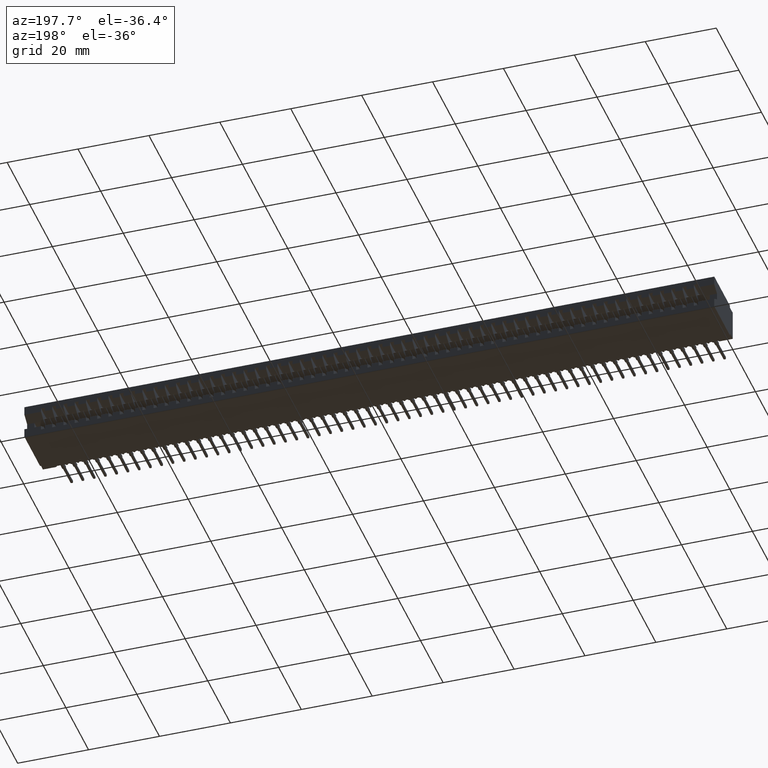
[diagram: clean part render]
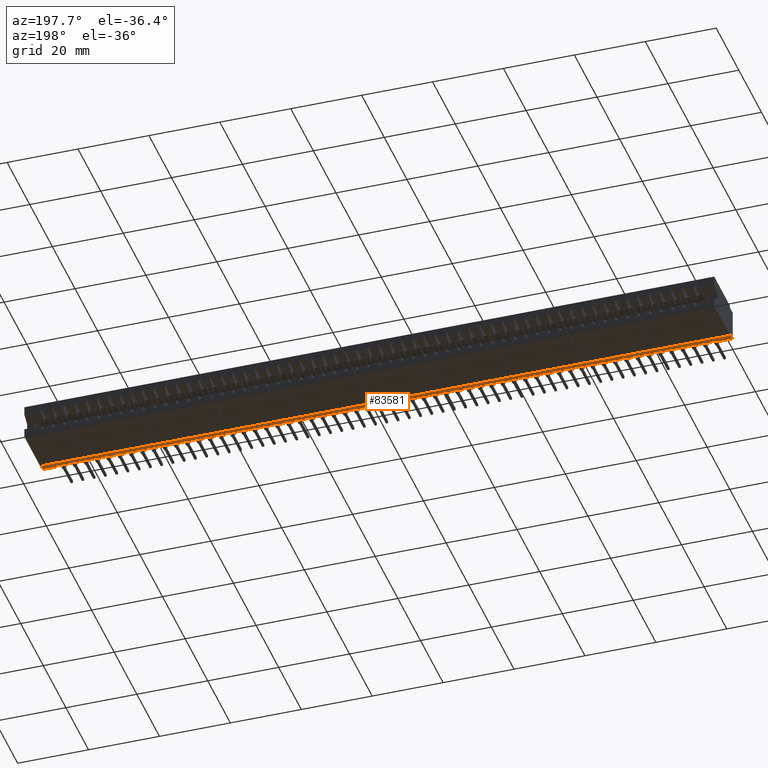
[diagram: same view with one face highlighted and labeled with its STEP entity id]
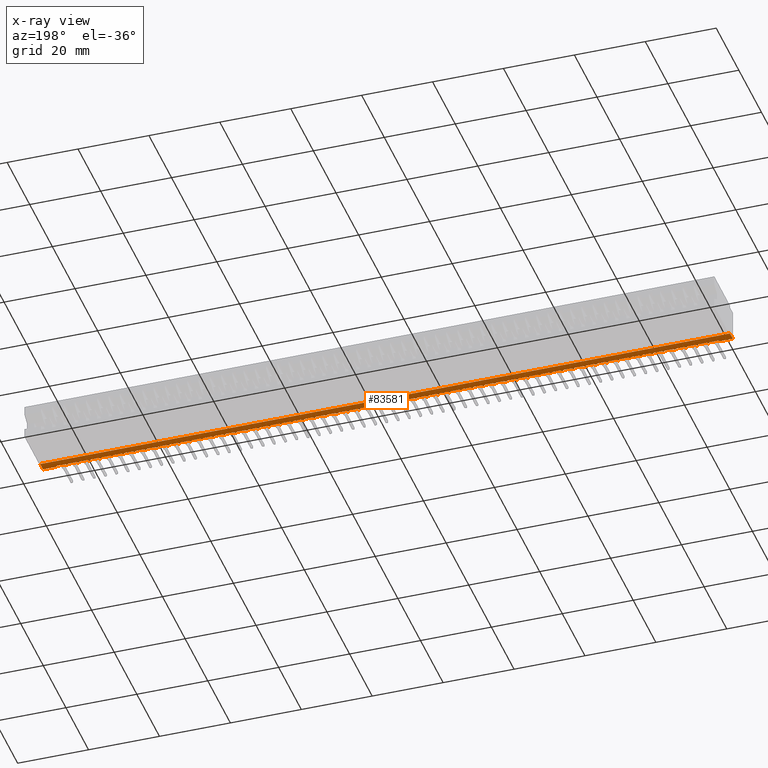
[diagram: x-ray of the same camera — body ghosted, the highlighted face saturated]
A machine part, auxiliary view. The second image highlights one B-rep face of the part: STEP entity #83581.
The next image is the same camera in x-ray: the body ghosted, the highlighted face saturated — about 0% of this face is hidden behind the body in this view.
In plain terms, the highlighted planar face has unit normal (0, 0, 1).
Its self-contained STEP definition (entity closure, byte-faithful):
#171 = CARTESIAN_POINT ( 'NONE',  ( 0.2524999999999996692, 0.01499999999999997169, -0.3649999999999999911 ) ) ;
#321 = CARTESIAN_POINT ( 'NONE',  ( 0.0000000000000000000, 0.0000000000000000000, -0.3649999999999999911 ) ) ;
#326 = DIRECTION ( 'NONE',  ( 1.000000000000000000, 0.0000000000000000000, 0.0000000000000000000 ) ) ;
#748 = VERTEX_POINT ( 'NONE', #38401 ) ;
#793 = CARTESIAN_POINT ( 'NONE',  ( 7.407499999999998863, 0.01499999999999997169, -0.3649999999999999911 ) ) ;
#796 = AXIS2_PLACEMENT_3D ( 'NONE', #19262, #87884, #20150 ) ;
#883 = VECTOR ( 'NONE', #50151, 39.37007874015748143 ) ;
#1041 = VERTEX_POINT ( 'NONE', #3174 ) ;
#1110 = VERTEX_POINT ( 'NONE', #50735 ) ;
#1190 = LINE ( 'NONE', #29458, #59462 ) ;
#1290 = VERTEX_POINT ( 'NONE', #47549 ) ;
#1369 = AXIS2_PLACEMENT_3D ( 'NONE', #17349, #57705, #72948 ) ;
#1422 = EDGE_CURVE ( 'NONE', #67284, #25108, #30544, .T. ) ;
#1527 = EDGE_CURVE ( 'NONE', #78752, #69175, #1694, .T. ) ;
#1571 = AXIS2_PLACEMENT_3D ( 'NONE', #50422, #77789, #65653 ) ;
#1628 = DIRECTION ( 'NONE',  ( 1.000000000000000000, -0.0000000000000000000, -2.307304048702925122E-16 ) ) ;
#1694 = CIRCLE ( 'NONE', #31810, 0.01500000000000024925 ) ;
#1820 = ORIENTED_EDGE ( 'NONE', *, *, #59774, .F. ) ;
#2091 = ORIENTED_EDGE ( 'NONE', *, *, #30328, .F. ) ;
#2177 = ORIENTED_EDGE ( 'NONE', *, *, #40164, .F. ) ;
#2200 = DIRECTION ( 'NONE',  ( 0.0000000000000000000, 0.0000000000000000000, 1.000000000000000000 ) ) ;
#2558 = EDGE_CURVE ( 'NONE', #31742, #78752, #80437, .T. ) ;
#2632 = ORIENTED_EDGE ( 'NONE', *, *, #13434, .F. ) ;
#2648 = DIRECTION ( 'NONE',  ( 1.000000000000000000, 0.0000000000000000000, 0.0000000000000000000 ) ) ;
#2671 = AXIS2_PLACEMENT_3D ( 'NONE', #7957, #49227, #326 ) ;
#2672 = CARTESIAN_POINT ( 'NONE',  ( 7.517499999999998295, 0.0000000000000000000, -0.3649999999999999911 ) ) ;
#2715 = DIRECTION ( 'NONE',  ( 0.0000000000000000000, 0.0000000000000000000, 1.000000000000000000 ) ) ;
#2819 = VERTEX_POINT ( 'NONE', #77670 ) ;
#2961 = VERTEX_POINT ( 'NONE', #321 ) ;
#3047 = CARTESIAN_POINT ( 'NONE',  ( 6.183999999999998387, 0.01499999999999996302, -0.3649999999999999911 ) ) ;
#3066 = CARTESIAN_POINT ( 'NONE',  ( 5.142499999999999183, 0.01499999999999997169, -0.3649999999999999911 ) ) ;
#3115 = DIRECTION ( 'NONE',  ( 0.0000000000000000000, 0.0000000000000000000, 1.000000000000000000 ) ) ;
#3174 = CARTESIAN_POINT ( 'NONE',  ( 3.907499999999999751, 0.01499999999999997169, -0.3649999999999999911 ) ) ;
#3319 = LINE ( 'NONE', #85395, #5577 ) ;
#3410 = ORIENTED_EDGE ( 'NONE', *, *, #34671, .F. ) ;
#3502 = CARTESIAN_POINT ( 'NONE',  ( 3.267499999999999627, 0.01499999999999997169, -0.3649999999999999911 ) ) ;
#3541 = CARTESIAN_POINT ( 'NONE',  ( 4.142500000000000071, 0.01499999999999997169, -0.3649999999999999911 ) ) ;
#3544 = VERTEX_POINT ( 'NONE', #49917 ) ;
#3737 = EDGE_CURVE ( 'NONE', #53117, #82314, #7712, .T. ) ;
#3774 = DIRECTION ( 'NONE',  ( 1.000000000000000000, 0.0000000000000000000, 0.0000000000000000000 ) ) ;
#3864 = ORIENTED_EDGE ( 'NONE', *, *, #29327, .F. ) ;
#3874 = CARTESIAN_POINT ( 'NONE',  ( 1.377499999999999725, 0.01499999999999997169, -0.3649999999999999911 ) ) ;
#3893 = DIRECTION ( 'NONE',  ( 1.000000000000000000, -0.0000000000000000000, -2.307304048702925122E-16 ) ) ;
#3976 = DIRECTION ( 'NONE',  ( 1.000000000000000000, 0.0000000000000000000, 0.0000000000000000000 ) ) ;
#4006 = VERTEX_POINT ( 'NONE', #15639 ) ;
#4016 = ORIENTED_EDGE ( 'NONE', *, *, #12882, .F. ) ;
#4037 = DIRECTION ( 'NONE',  ( 0.0000000000000000000, 0.0000000000000000000, 1.000000000000000000 ) ) ;
#4106 = CARTESIAN_POINT ( 'NONE',  ( 5.558999999999999275, 0.01499999999999996302, -0.3649999999999999911 ) ) ;
#4130 = EDGE_CURVE ( 'NONE', #10121, #35232, #56373, .T. ) ;
#4139 = DIRECTION ( 'NONE',  ( 1.000000000000000000, 0.0000000000000000000, 0.0000000000000000000 ) ) ;
#4373 = LINE ( 'NONE', #31743, #883 ) ;
#4452 = CARTESIAN_POINT ( 'NONE',  ( 2.017499999999999627, 0.01499999999999997169, -0.3649999999999999911 ) ) ;
#4461 = VERTEX_POINT ( 'NONE', #56753 ) ;
#4556 = VERTEX_POINT ( 'NONE', #57638 ) ;
#4586 = EDGE_CURVE ( 'NONE', #55239, #62129, #52392, .T. ) ;
#4620 = VERTEX_POINT ( 'NONE', #78278 ) ;
#4687 = CIRCLE ( 'NONE', #63418, 0.01499999999999970281 ) ;
#4720 = AXIS2_PLACEMENT_3D ( 'NONE', #3066, #55601, #82963 ) ;
#4730 = VERTEX_POINT ( 'NONE', #171 ) ;
#4749 = EDGE_CURVE ( 'NONE', #77446, #15779, #88117, .T. ) ;
#4754 = CIRCLE ( 'NONE', #60615, 0.01500000000000024925 ) ;
#4917 = CARTESIAN_POINT ( 'NONE',  ( 3.517499999999999627, 0.01499999999999997169, -0.3649999999999999911 ) ) ;
#4934 = VERTEX_POINT ( 'NONE', #76857 ) ;
#5120 = VERTEX_POINT ( 'NONE', #61558 ) ;
#5336 = ORIENTED_EDGE ( 'NONE', *, *, #21959, .F. ) ;
#5460 = EDGE_CURVE ( 'NONE', #82473, #36848, #57884, .T. ) ;
#5536 = EDGE_CURVE ( 'NONE', #6707, #78968, #37904, .T. ) ;
#5577 = VECTOR ( 'NONE', #42406, 39.37007874015748143 ) ;
#5719 = LINE ( 'NONE', #59541, #29188 ) ;
#6138 = CARTESIAN_POINT ( 'NONE',  ( 3.683999999999999275, 0.01499999999999996302, -0.3649999999999999911 ) ) ;
#6396 = CARTESIAN_POINT ( 'NONE',  ( 1.017499999999999627, 0.01499999999999997169, -0.3649999999999999911 ) ) ;
#6401 = AXIS2_PLACEMENT_3D ( 'NONE', #27731, #82440, #84200 ) ;
#6565 = ORIENTED_EDGE ( 'NONE', *, *, #54559, .F. ) ;
#6707 = VERTEX_POINT ( 'NONE', #64635 ) ;
#6754 = CARTESIAN_POINT ( 'NONE',  ( 5.282499999999998863, 0.01499999999999997169, -0.3649999999999999911 ) ) ;
#6826 = CARTESIAN_POINT ( 'NONE',  ( 5.377499999999999503, 0.01499999999999997169, -0.3649999999999999911 ) ) ;
#6860 = VERTEX_POINT ( 'NONE', #60566 ) ;
#6915 = DIRECTION ( 'NONE',  ( 0.0000000000000000000, 1.000000000000000000, 0.0000000000000000000 ) ) ;
#6940 = LINE ( 'NONE', #14579, #86334 ) ;
#7137 = DIRECTION ( 'NONE',  ( 0.0000000000000000000, 0.0000000000000000000, 1.000000000000000000 ) ) ;
#7152 = VECTOR ( 'NONE', #34206, 39.37007874015748143 ) ;
#7204 = VERTEX_POINT ( 'NONE', #55937 ) ;
#7258 = ORIENTED_EDGE ( 'NONE', *, *, #58744, .F. ) ;
#7483 = EDGE_CURVE ( 'NONE', #20647, #45972, #81766, .T. ) ;
#7489 = ORIENTED_EDGE ( 'NONE', *, *, #43886, .F. ) ;
#7594 = ORIENTED_EDGE ( 'NONE', *, *, #1422, .F. ) ;
#7641 = LINE ( 'NONE', #19366, #23277 ) ;
#7712 = CIRCLE ( 'NONE', #82184, 0.01499999999999970281 ) ;
#7756 = EDGE_CURVE ( 'NONE', #45209, #10319, #9784, .T. ) ;
#7790 = CIRCLE ( 'NONE', #67928, 0.01500000000000024925 ) ;
#7890 = VERTEX_POINT ( 'NONE', #68659 ) ;
#7957 = CARTESIAN_POINT ( 'NONE',  ( 0.6424999999999996270, 0.01499999999999997169, -0.3649999999999999911 ) ) ;
#8004 = EDGE_CURVE ( 'NONE', #29080, #32740, #21540, .T. ) ;
#8109 = AXIS2_PLACEMENT_3D ( 'NONE', #49583, #75627, #70222 ) ;
#8240 = CARTESIAN_POINT ( 'NONE',  ( 2.407499999999999751, 0.01499999999999997169, -0.3649999999999999911 ) ) ;
#8421 = AXIS2_PLACEMENT_3D ( 'NONE', #9185, #17257, #3774 ) ;
#8439 = DIRECTION ( 'NONE',  ( -0.0000000000000000000, -0.0000000000000000000, -1.000000000000000000 ) ) ;
#8476 = EDGE_CURVE ( 'NONE', #70274, #4620, #57102, .T. ) ;
#8525 = CARTESIAN_POINT ( 'NONE',  ( 6.808999999999998387, 0.01499999999999996302, -0.3649999999999999911 ) ) ;
#8563 = EDGE_CURVE ( 'NONE', #82914, #67284, #35787, .T. ) ;
#8645 = DIRECTION ( 'NONE',  ( 0.0000000000000000000, 0.0000000000000000000, 1.000000000000000000 ) ) ;
#8736 = DIRECTION ( 'NONE',  ( -1.000000000000000000, -0.0000000000000000000, -0.0000000000000000000 ) ) ;
#8835 = DIRECTION ( 'NONE',  ( 0.0000000000000000000, 0.0000000000000000000, 1.000000000000000000 ) ) ;
#8964 = EDGE_CURVE ( 'NONE', #57016, #82314, #56285, .T. ) ;
#9065 = DIRECTION ( 'NONE',  ( 1.000000000000000000, -0.0000000000000000000, -2.307304048702925122E-16 ) ) ;
#9075 = ORIENTED_EDGE ( 'NONE', *, *, #18735, .F. ) ;
#9185 = CARTESIAN_POINT ( 'NONE',  ( 3.892499999999999627, 0.01499999999999997169, -0.3649999999999999911 ) ) ;
#9423 = CARTESIAN_POINT ( 'NONE',  ( 3.183999999999999275, 0.01499999999999996302, -0.3649999999999999911 ) ) ;
#9627 = LINE ( 'NONE', #56728, #32079 ) ;
#9784 = CIRCLE ( 'NONE', #55644, 0.01499999999999970281 ) ;
#9900 = AXIS2_PLACEMENT_3D ( 'NONE', #14530, #34706, #47706 ) ;
#9954 = CIRCLE ( 'NONE', #71537, 0.01499999999999997689 ) ;
#9989 = CIRCLE ( 'NONE', #24324, 0.01499999999999997689 ) ;
#10121 = VERTEX_POINT ( 'NONE', #49138 ) ;
#10143 = CARTESIAN_POINT ( 'NONE',  ( 0.6274999999999996136, 0.01499999999999997169, -0.3649999999999999911 ) ) ;
#10191 = DIRECTION ( 'NONE',  ( 1.000000000000000000, 0.0000000000000000000, 0.0000000000000000000 ) ) ;
#10319 = VERTEX_POINT ( 'NONE', #57183 ) ;
#10402 = DIRECTION ( 'NONE',  ( 0.0000000000000000000, 0.0000000000000000000, 1.000000000000000000 ) ) ;
#10425 = VERTEX_POINT ( 'NONE', #19033 ) ;
#10498 = DIRECTION ( 'NONE',  ( 1.000000000000000000, 0.0000000000000000000, 0.0000000000000000000 ) ) ;
#10587 = CARTESIAN_POINT ( 'NONE',  ( 3.558999999999999275, 0.01499999999999996302, -0.3649999999999999911 ) ) ;
#10692 = VERTEX_POINT ( 'NONE', #70967 ) ;
#10736 = DIRECTION ( 'NONE',  ( 1.000000000000000000, 0.0000000000000000000, 0.0000000000000000000 ) ) ;
#10942 = DIRECTION ( 'NONE',  ( 0.0000000000000000000, 0.0000000000000000000, 1.000000000000000000 ) ) ;
#10955 = DIRECTION ( 'NONE',  ( 1.000000000000000000, -0.0000000000000000000, -2.307304048702925122E-16 ) ) ;
#11164 = CARTESIAN_POINT ( 'NONE',  ( 0.3089999999999996083, 0.01499999999999996302, -0.3649999999999999911 ) ) ;
#11239 = CARTESIAN_POINT ( 'NONE',  ( 6.267499999999998295, 0.01499999999999997169, -0.3649999999999999911 ) ) ;
#11372 = VERTEX_POINT ( 'NONE', #49784 ) ;
#11576 = DIRECTION ( 'NONE',  ( 1.000000000000000000, 0.0000000000000000000, 0.0000000000000000000 ) ) ;
#11757 = CARTESIAN_POINT ( 'NONE',  ( 7.660000000000000142, 0.0000000000000000000, -0.3649999999999999911 ) ) ;
#11809 = EDGE_CURVE ( 'NONE', #28098, #61668, #83734, .T. ) ;
#11835 = CARTESIAN_POINT ( 'NONE',  ( 1.808999999999999719, 0.01499999999999996302, -0.3649999999999999911 ) ) ;
#11926 = VERTEX_POINT ( 'NONE', #50551 ) ;
#11995 = DIRECTION ( 'NONE',  ( 1.000000000000000000, 0.0000000000000000000, 0.0000000000000000000 ) ) ;
#12025 = VECTOR ( 'NONE', #64532, 39.37007874015748143 ) ;
#12165 = CARTESIAN_POINT ( 'NONE',  ( 7.157499999999998863, 0.01499999999999997169, -0.3649999999999999911 ) ) ;
#12242 = CARTESIAN_POINT ( 'NONE',  ( 0.3774999999999996692, 0.01499999999999997169, -0.3649999999999999911 ) ) ;
#12347 = DIRECTION ( 'NONE',  ( 0.0000000000000000000, 0.0000000000000000000, 1.000000000000000000 ) ) ;
#12531 = ORIENTED_EDGE ( 'NONE', *, *, #41946, .T. ) ;
#12701 = CARTESIAN_POINT ( 'NONE',  ( 3.032499999999999307, 0.01499999999999997169, -0.3649999999999999911 ) ) ;
#12712 = EDGE_CURVE ( 'NONE', #748, #68457, #52349, .T. ) ;
#12737 = ORIENTED_EDGE ( 'NONE', *, *, #7483, .F. ) ;
#12882 = EDGE_CURVE ( 'NONE', #87520, #24898, #56643, .T. ) ;
#12928 = CARTESIAN_POINT ( 'NONE',  ( 5.808999999999999275, 0.01499999999999996302, -0.3649999999999999911 ) ) ;
#12944 = CARTESIAN_POINT ( 'NONE',  ( 2.892499999999999627, 0.01499999999999997169, -0.3649999999999999911 ) ) ;
#13056 = VECTOR ( 'NONE', #70955, 39.37007874015748143 ) ;
#13161 = CARTESIAN_POINT ( 'NONE',  ( 2.558999999999999275, 0.01499999999999996302, -0.3649999999999999911 ) ) ;
#13241 = VECTOR ( 'NONE', #30094, 39.37007874015748143 ) ;
#13251 = DIRECTION ( 'NONE',  ( 1.000000000000000000, -0.0000000000000000000, -2.307304048702925122E-16 ) ) ;
#13294 = DIRECTION ( 'NONE',  ( 1.000000000000000000, 0.0000000000000000000, 0.0000000000000000000 ) ) ;
#13322 = VECTOR ( 'NONE', #69884, 39.37007874015748143 ) ;
#13328 = AXIS2_PLACEMENT_3D ( 'NONE', #11757, #71859, #38237 ) ;
#13434 = EDGE_CURVE ( 'NONE', #14551, #60323, #76821, .T. ) ;
#13614 = DIRECTION ( 'NONE',  ( 1.000000000000000000, -0.0000000000000000000, -2.307304048702925122E-16 ) ) ;
#13618 = VERTEX_POINT ( 'NONE', #33397 ) ;
#13656 = VECTOR ( 'NONE', #32859, 39.37007874015748143 ) ;
#13817 = VERTEX_POINT ( 'NONE', #69249 ) ;
#13841 = CARTESIAN_POINT ( 'NONE',  ( 6.877499999999998614, 0.01499999999999997169, -0.3649999999999999911 ) ) ;
#13968 = AXIS2_PLACEMENT_3D ( 'NONE', #55503, #62694, #55068 ) ;
#14006 = EDGE_CURVE ( 'NONE', #50326, #82914, #81240, .T. ) ;
#14052 = VECTOR ( 'NONE', #8736, 39.37007874015748143 ) ;
#14079 = CARTESIAN_POINT ( 'NONE',  ( 0.2824999999999996958, 0.01499999999999997169, -0.3649999999999999911 ) ) ;
#14122 = CARTESIAN_POINT ( 'NONE',  ( 4.308999999999999275, 0.01499999999999996302, -0.3649999999999999911 ) ) ;
#14292 = ORIENTED_EDGE ( 'NONE', *, *, #38459, .F. ) ;
#14482 = EDGE_CURVE ( 'NONE', #57494, #30446, #27226, .T. ) ;
#14530 = CARTESIAN_POINT ( 'NONE',  ( 6.142499999999999183, 0.01499999999999997169, -0.3649999999999999911 ) ) ;
#14551 = VERTEX_POINT ( 'NONE', #75201 ) ;
#14561 = ORIENTED_EDGE ( 'NONE', *, *, #49235, .F. ) ;
#14579 = CARTESIAN_POINT ( 'NONE',  ( 1.433999999999999719, 0.01499999999999996302, -0.3649999999999999911 ) ) ;
#14667 = DIRECTION ( 'NONE',  ( 1.000000000000000000, 0.0000000000000000000, 0.0000000000000000000 ) ) ;
#14682 = ORIENTED_EDGE ( 'NONE', *, *, #68017, .F. ) ;
#14729 = AXIS2_PLACEMENT_3D ( 'NONE', #87998, #87556, #39575 ) ;
#14807 = AXIS2_PLACEMENT_3D ( 'NONE', #88291, #74395, #68992 ) ;
#14962 = VERTEX_POINT ( 'NONE', #80498 ) ;
#14966 = AXIS2_PLACEMENT_3D ( 'NONE', #11239, #31426, #57883 ) ;
#15058 = ORIENTED_EDGE ( 'NONE', *, *, #38605, .F. ) ;
#15133 = ORIENTED_EDGE ( 'NONE', *, *, #5460, .F. ) ;
#15209 = ORIENTED_EDGE ( 'NONE', *, *, #41056, .F. ) ;
#15235 = CARTESIAN_POINT ( 'NONE',  ( 6.058999999999999275, 0.01499999999999996302, -0.3649999999999999911 ) ) ;
#15261 = LINE ( 'NONE', #8525, #71211 ) ;
#15308 = VERTEX_POINT ( 'NONE', #84505 ) ;
#15316 = DIRECTION ( 'NONE',  ( 1.000000000000000000, -0.0000000000000000000, -2.307304048702925122E-16 ) ) ;
#15387 = CARTESIAN_POINT ( 'NONE',  ( 6.017499999999999183, 0.01499999999999997169, -0.3649999999999999911 ) ) ;
#15590 = CARTESIAN_POINT ( 'NONE',  ( 7.282499999999999751, 0.01499999999999997169, -0.3649999999999999911 ) ) ;
#15639 = CARTESIAN_POINT ( 'NONE',  ( 6.502499999999999503, 0.01499999999999997169, -0.3649999999999999911 ) ) ;
#15640 = VERTEX_POINT ( 'NONE', #76356 ) ;
#15779 = VERTEX_POINT ( 'NONE', #22505 ) ;
#16117 = DIRECTION ( 'NONE',  ( 1.000000000000000000, -0.0000000000000000000, -2.307304048702925122E-16 ) ) ;
#16150 = DIRECTION ( 'NONE',  ( 1.000000000000000000, -0.0000000000000000000, -2.307304048702925122E-16 ) ) ;
#16185 = EDGE_CURVE ( 'NONE', #64864, #21376, #23916, .T. ) ;
#16187 = DIRECTION ( 'NONE',  ( 1.000000000000000000, 0.0000000000000000000, 0.0000000000000000000 ) ) ;
#16188 = CIRCLE ( 'NONE', #14729, 0.01499999999999970281 ) ;
#16258 = EDGE_CURVE ( 'NONE', #67462, #34613, #37646, .T. ) ;
#16346 = AXIS2_PLACEMENT_3D ( 'NONE', #32635, #80603, #45203 ) ;
#16496 = EDGE_CURVE ( 'NONE', #56021, #11926, #48323, .T. ) ;
#16498 = VECTOR ( 'NONE', #18050, 39.37007874015748143 ) ;
#16529 = VECTOR ( 'NONE', #36076, 39.37007874015748143 ) ;
#16577 = DIRECTION ( 'NONE',  ( 0.0000000000000000000, 0.0000000000000000000, 1.000000000000000000 ) ) ;
#16767 = VERTEX_POINT ( 'NONE', #46043 ) ;
#16928 = VERTEX_POINT ( 'NONE', #34797 ) ;
#17070 = CIRCLE ( 'NONE', #72898, 0.01499999999999970281 ) ;
#17173 = CARTESIAN_POINT ( 'NONE',  ( 0.0000000000000000000, 0.0000000000000000000, -0.3649999999999999911 ) ) ;
#17257 = DIRECTION ( 'NONE',  ( 0.0000000000000000000, 0.0000000000000000000, 1.000000000000000000 ) ) ;
#17349 = CARTESIAN_POINT ( 'NONE',  ( 5.642500000000000071, 0.01499999999999997169, -0.3649999999999999911 ) ) ;
#17476 = EDGE_CURVE ( 'NONE', #16767, #67462, #65591, .T. ) ;
#17627 = ORIENTED_EDGE ( 'NONE', *, *, #19386, .F. ) ;
#17736 = CARTESIAN_POINT ( 'NONE',  ( 5.892499999999999183, 0.01499999999999997169, -0.3649999999999999911 ) ) ;
#17844 = VERTEX_POINT ( 'NONE', #31256 ) ;
#18050 = DIRECTION ( 'NONE',  ( 0.0000000000000000000, 1.000000000000000000, 0.0000000000000000000 ) ) ;
#18263 = LINE ( 'NONE', #24526, #87984 ) ;
#18274 = EDGE_CURVE ( 'NONE', #35923, #1041, #47112, .T. ) ;
#18333 = DIRECTION ( 'NONE',  ( 0.0000000000000000000, 0.0000000000000000000, 1.000000000000000000 ) ) ;
#18411 = CARTESIAN_POINT ( 'NONE',  ( 2.933999999999999275, 0.01499999999999996302, -0.3649999999999999911 ) ) ;
#18434 = EDGE_CURVE ( 'NONE', #77726, #36475, #66110, .T. ) ;
#18583 = EDGE_CURVE ( 'NONE', #76206, #6860, #40029, .T. ) ;
#18730 = DIRECTION ( 'NONE',  ( 0.0000000000000000000, 0.0000000000000000000, 1.000000000000000000 ) ) ;
#18735 = EDGE_CURVE ( 'NONE', #72860, #29080, #17070, .T. ) ;
#18786 = EDGE_CURVE ( 'NONE', #54998, #37802, #35714, .T. ) ;
#18916 = VERTEX_POINT ( 'NONE', #40023 ) ;
#18952 = ORIENTED_EDGE ( 'NONE', *, *, #83653, .F. ) ;
#19020 = ORIENTED_EDGE ( 'NONE', *, *, #69818, .F. ) ;
#19033 = CARTESIAN_POINT ( 'NONE',  ( 6.002499999999999503, 0.01499999999999997169, -0.3649999999999999911 ) ) ;
#19082 = CIRCLE ( 'NONE', #64842, 0.01500000000000001159 ) ;
#19212 = DIRECTION ( 'NONE',  ( 1.000000000000000000, -0.0000000000000000000, -2.307304048702925122E-16 ) ) ;
#19262 = CARTESIAN_POINT ( 'NONE',  ( 6.892499999999998295, 0.01499999999999997169, -0.3649999999999999911 ) ) ;
#19263 = AXIS2_PLACEMENT_3D ( 'NONE', #84625, #50536, #42516 ) ;
#19366 = CARTESIAN_POINT ( 'NONE',  ( 7.183999999999998387, 0.01499999999999996302, -0.3649999999999999911 ) ) ;
#19372 = DIRECTION ( 'NONE',  ( 0.0000000000000000000, 0.0000000000000000000, 1.000000000000000000 ) ) ;
#19386 = EDGE_CURVE ( 'NONE', #22526, #82473, #61535, .T. ) ;
#19474 = DIRECTION ( 'NONE',  ( 1.000000000000000000, -0.0000000000000000000, -2.307304048702925122E-16 ) ) ;
#19492 = ORIENTED_EDGE ( 'NONE', *, *, #83314, .F. ) ;
#19701 = ORIENTED_EDGE ( 'NONE', *, *, #36272, .F. ) ;
#19928 = LINE ( 'NONE', #82675, #30467 ) ;
#19983 = DIRECTION ( 'NONE',  ( 1.000000000000000000, 0.0000000000000000000, 0.0000000000000000000 ) ) ;
#19993 = CARTESIAN_POINT ( 'NONE',  ( 3.532499999999999751, 0.01499999999999997169, -0.3649999999999999911 ) ) ;
#20083 = DIRECTION ( 'NONE',  ( 1.000000000000000000, 0.0000000000000000000, 0.0000000000000000000 ) ) ;
#20150 = DIRECTION ( 'NONE',  ( 1.000000000000000000, 0.0000000000000000000, 0.0000000000000000000 ) ) ;
#20194 = ORIENTED_EDGE ( 'NONE', *, *, #50483, .F. ) ;
#20289 = LINE ( 'NONE', #85134, #51333 ) ;
#20293 = ORIENTED_EDGE ( 'NONE', *, *, #4586, .F. ) ;
#20327 = EDGE_CURVE ( 'NONE', #25108, #72860, #29387, .T. ) ;
#20377 = LINE ( 'NONE', #61653, #83318 ) ;
#20414 = CARTESIAN_POINT ( 'NONE',  ( 3.058999999999999275, 0.01499999999999996302, -0.3649999999999999911 ) ) ;
#20546 = VECTOR ( 'NONE', #41583, 39.37007874015748143 ) ;
#20639 = LINE ( 'NONE', #43040, #34643 ) ;
#20647 = VERTEX_POINT ( 'NONE', #35135 ) ;
#20692 = EDGE_CURVE ( 'NONE', #60323, #37151, #44056, .T. ) ;
#20970 = ORIENTED_EDGE ( 'NONE', *, *, #71237, .F. ) ;
#21094 = LINE ( 'NONE', #48454, #30407 ) ;
#21163 = EDGE_CURVE ( 'NONE', #75421, #67305, #77561, .T. ) ;
#21350 = CARTESIAN_POINT ( 'NONE',  ( 2.433999999999999719, 0.01499999999999996302, -0.3649999999999999911 ) ) ;
#21376 = VERTEX_POINT ( 'NONE', #793 ) ;
#21382 = ORIENTED_EDGE ( 'NONE', *, *, #39722, .F. ) ;
#21386 = DIRECTION ( 'NONE',  ( 0.0000000000000000000, 0.0000000000000000000, 1.000000000000000000 ) ) ;
#21540 = LINE ( 'NONE', #22855, #61427 ) ;
#21609 = CARTESIAN_POINT ( 'NONE',  ( 4.407499999999999751, 0.01499999999999997169, -0.3649999999999999911 ) ) ;
#21634 = CIRCLE ( 'NONE', #77512, 0.01500000000000024925 ) ;
#21802 = ORIENTED_EDGE ( 'NONE', *, *, #43866, .F. ) ;
#21904 = CARTESIAN_POINT ( 'NONE',  ( 6.683999999999999275, 0.01499999999999996302, -0.3649999999999999911 ) ) ;
#21959 = EDGE_CURVE ( 'NONE', #35232, #72973, #35700, .T. ) ;
#21996 = AXIS2_PLACEMENT_3D ( 'NONE', #51906, #18730, #11995 ) ;
#22099 = DIRECTION ( 'NONE',  ( 0.0000000000000000000, 0.0000000000000000000, 1.000000000000000000 ) ) ;
#22311 = LINE ( 'NONE', #69004, #13322 ) ;
#22416 = CARTESIAN_POINT ( 'NONE',  ( 6.558999999999998387, 0.01499999999999996302, -0.3649999999999999911 ) ) ;
#22423 = LINE ( 'NONE', #23309, #27640 ) ;
#22476 = CARTESIAN_POINT ( 'NONE',  ( 2.657499999999999751, 0.01499999999999997169, -0.3649999999999999911 ) ) ;
#22500 = EDGE_CURVE ( 'NONE', #74540, #84557, #76036, .T. ) ;
#22505 = CARTESIAN_POINT ( 'NONE',  ( 4.377499999999999503, 0.01499999999999997169, -0.3649999999999999911 ) ) ;
#22526 = VERTEX_POINT ( 'NONE', #24640 ) ;
#22663 = ORIENTED_EDGE ( 'NONE', *, *, #67693, .F. ) ;
#22785 = ORIENTED_EDGE ( 'NONE', *, *, #87669, .F. ) ;
#22786 = ORIENTED_EDGE ( 'NONE', *, *, #68448, .F. ) ;
#22833 = EDGE_CURVE ( 'NONE', #2819, #40550, #68929, .T. ) ;
#22855 = CARTESIAN_POINT ( 'NONE',  ( 5.308999999999998387, 0.01499999999999996302, -0.3649999999999999911 ) ) ;
#22854 = CARTESIAN_POINT ( 'NONE',  ( 7.660000000000000142, 0.1000000000000000056, -0.3649999999999999911 ) ) ;
#22944 = CARTESIAN_POINT ( 'NONE',  ( 3.252499999999999059, 0.01499999999999997169, -0.3649999999999999911 ) ) ;
#23086 = DIRECTION ( 'NONE',  ( 1.000000000000000000, -0.0000000000000000000, -2.307304048702925122E-16 ) ) ;
#23093 = DIRECTION ( 'NONE',  ( 1.000000000000000000, -0.0000000000000000000, -2.307304048702925122E-16 ) ) ;
#23254 = AXIS2_PLACEMENT_3D ( 'NONE', #3502, #72564, #11576 ) ;
#23277 = VECTOR ( 'NONE', #46710, 39.37007874015748143 ) ;
#23309 = CARTESIAN_POINT ( 'NONE',  ( 7.308999999999999275, 0.01499999999999996302, -0.3649999999999999911 ) ) ;
#23447 = CARTESIAN_POINT ( 'NONE',  ( 4.558999999999999275, 0.01499999999999996302, -0.3649999999999999911 ) ) ;
#23916 = CIRCLE ( 'NONE', #74055, 0.01499999999999970281 ) ;
#24033 = LINE ( 'NONE', #72024, #76281 ) ;
#24084 = CARTESIAN_POINT ( 'NONE',  ( 5.517499999999999183, 0.01499999999999997169, -0.3649999999999999911 ) ) ;
#24180 = EDGE_CURVE ( 'NONE', #21376, #53117, #3319, .T. ) ;
#24190 = VECTOR ( 'NONE', #82223, 39.37007874015748143 ) ;
#24201 = DIRECTION ( 'NONE',  ( 1.000000000000000000, 0.0000000000000000000, 0.0000000000000000000 ) ) ;
#24206 = CARTESIAN_POINT ( 'NONE',  ( 6.282499999999999751, 0.01499999999999997169, -0.3649999999999999911 ) ) ;
#24324 = AXIS2_PLACEMENT_3D ( 'NONE', #30483, #59598, #10736 ) ;
#24366 = CARTESIAN_POINT ( 'NONE',  ( 3.642499999999999627, 0.01499999999999997169, -0.3649999999999999911 ) ) ;
#24436 = VERTEX_POINT ( 'NONE', #14079 ) ;
#24501 = VECTOR ( 'NONE', #79556, 39.37007874015748143 ) ;
#24526 = CARTESIAN_POINT ( 'NONE',  ( 4.058999999999999275, 0.01499999999999996302, -0.3649999999999999911 ) ) ;
#24619 = CARTESIAN_POINT ( 'NONE',  ( 6.392499999999999183, 0.01499999999999997169, -0.3649999999999999911 ) ) ;
#24640 = CARTESIAN_POINT ( 'NONE',  ( 2.752499999999999503, 0.01499999999999997169, -0.3649999999999999911 ) ) ;
#24688 = ORIENTED_EDGE ( 'NONE', *, *, #12712, .F. ) ;
#24898 = VERTEX_POINT ( 'NONE', #28731 ) ;
#24991 = EDGE_CURVE ( 'NONE', #1290, #80687, #9989, .T. ) ;
#25001 = DIRECTION ( 'NONE',  ( 0.0000000000000000000, 0.0000000000000000000, 1.000000000000000000 ) ) ;
#25005 = EDGE_CURVE ( 'NONE', #79469, #32983, #35810, .T. ) ;
#25036 = DIRECTION ( 'NONE',  ( 1.000000000000000000, 0.0000000000000000000, 0.0000000000000000000 ) ) ;
#25108 = VERTEX_POINT ( 'NONE', #61718 ) ;
#25255 = ORIENTED_EDGE ( 'NONE', *, *, #14006, .F. ) ;
#25322 = LINE ( 'NONE', #32967, #67584 ) ;
#25573 = EDGE_CURVE ( 'NONE', #62129, #10425, #55308, .T. ) ;
#25768 = VECTOR ( 'NONE', #43075, 39.37007874015748143 ) ;
#25777 = DIRECTION ( 'NONE',  ( 1.000000000000000000, -0.0000000000000000000, -2.307304048702925122E-16 ) ) ;
#25844 = VERTEX_POINT ( 'NONE', #86644 ) ;
#25923 = ORIENTED_EDGE ( 'NONE', *, *, #87729, .F. ) ;
#25928 = LINE ( 'NONE', #53282, #41332 ) ;
#25978 = CIRCLE ( 'NONE', #78984, 0.01499999999999997689 ) ;
#26362 = VECTOR ( 'NONE', #61926, 39.37007874015748143 ) ;
#26398 = CIRCLE ( 'NONE', #14966, 0.01499999999999970281 ) ;
#26427 = ORIENTED_EDGE ( 'NONE', *, *, #30724, .F. ) ;
#26898 = CIRCLE ( 'NONE', #54098, 0.01500000000000024925 ) ;
#26944 = CARTESIAN_POINT ( 'NONE',  ( 1.892499999999999627, 0.01499999999999997169, -0.3649999999999999911 ) ) ;
#26945 = VECTOR ( 'NONE', #16117, 39.37007874015748143 ) ;
#27119 = CARTESIAN_POINT ( 'NONE',  ( 4.767500000000000071, 0.01499999999999997169, -0.3649999999999999911 ) ) ;
#27179 = ORIENTED_EDGE ( 'NONE', *, *, #33253, .F. ) ;
#27226 = LINE ( 'NONE', #6138, #51128 ) ;
#27238 = CARTESIAN_POINT ( 'NONE',  ( 2.532499999999999751, 0.01499999999999997169, -0.3649999999999999911 ) ) ;
#27342 = CARTESIAN_POINT ( 'NONE',  ( 4.002499999999999503, 0.01499999999999997169, -0.3649999999999999911 ) ) ;
#27525 = CIRCLE ( 'NONE', #37587, 0.01499999999999997689 ) ;
#27640 = VECTOR ( 'NONE', #35473, 39.37007874015748143 ) ;
#27731 = CARTESIAN_POINT ( 'NONE',  ( 2.267499999999999627, 0.01499999999999997169, -0.3649999999999999911 ) ) ;
#27772 = DIRECTION ( 'NONE',  ( 1.000000000000000000, 0.0000000000000000000, 0.0000000000000000000 ) ) ;
#27891 = VERTEX_POINT ( 'NONE', #15590 ) ;
#27962 = ORIENTED_EDGE ( 'NONE', *, *, #22500, .F. ) ;
#28025 = EDGE_CURVE ( 'NONE', #4461, #35923, #72042, .T. ) ;
#28098 = VERTEX_POINT ( 'NONE', #55846 ) ;
#28312 = CARTESIAN_POINT ( 'NONE',  ( 1.282499999999999751, 0.01499999999999997169, -0.3649999999999999911 ) ) ;
#28366 = EDGE_CURVE ( 'NONE', #72973, #31742, #40294, .T. ) ;
#28373 = CARTESIAN_POINT ( 'NONE',  ( 5.657499999999999751, 0.01499999999999997169, -0.3649999999999999911 ) ) ;
#28408 = CARTESIAN_POINT ( 'NONE',  ( 0.1424999999999997102, 0.0000000000000000000, -0.3649999999999999911 ) ) ;
#28436 = EDGE_CURVE ( 'NONE', #13817, #17844, #85855, .T. ) ;
#28586 = CARTESIAN_POINT ( 'NONE',  ( 5.782499999999999751, 0.01499999999999997169, -0.3649999999999999911 ) ) ;
#28731 = CARTESIAN_POINT ( 'NONE',  ( 6.907499999999999751, 0.01499999999999997169, -0.3649999999999999911 ) ) ;
#28968 = CARTESIAN_POINT ( 'NONE',  ( 4.627499999999999503, 0.01499999999999997169, -0.3649999999999999911 ) ) ;
#29080 = VERTEX_POINT ( 'NONE', #6754 ) ;
#29140 = CARTESIAN_POINT ( 'NONE',  ( 0.7674999999999996270, 0.01499999999999997169, -0.3649999999999999911 ) ) ;
#29169 = LINE ( 'NONE', #22416, #25768 ) ;
#29188 = VECTOR ( 'NONE', #86910, 39.37007874015748143 ) ;
#29327 = EDGE_CURVE ( 'NONE', #34613, #77446, #86223, .T. ) ;
#29387 = LINE ( 'NONE', #72392, #33034 ) ;
#29458 = CARTESIAN_POINT ( 'NONE',  ( 4.808999999999999275, 0.01499999999999996302, -0.3649999999999999911 ) ) ;
#29535 = ORIENTED_EDGE ( 'NONE', *, *, #87953, .F. ) ;
#29541 = CARTESIAN_POINT ( 'NONE',  ( 5.627500000000000391, 0.01499999999999997169, -0.3649999999999999911 ) ) ;
#29633 = ORIENTED_EDGE ( 'NONE', *, *, #72194, .F. ) ;
#29677 = ORIENTED_EDGE ( 'NONE', *, *, #85947, .F. ) ;
#29743 = EDGE_CURVE ( 'NONE', #67305, #36491, #75953, .T. ) ;
#30094 = DIRECTION ( 'NONE',  ( 1.000000000000000000, -0.0000000000000000000, -2.307304048702925122E-16 ) ) ;
#30254 = EDGE_CURVE ( 'NONE', #54260, #4556, #7641, .T. ) ;
#30277 = CARTESIAN_POINT ( 'NONE',  ( 3.127499999999999503, 0.01499999999999997169, -0.3649999999999999911 ) ) ;
#30296 = ORIENTED_EDGE ( 'NONE', *, *, #88620, .F. ) ;
#30328 = EDGE_CURVE ( 'NONE', #27891, #64864, #22423, .T. ) ;
#30407 = VECTOR ( 'NONE', #75814, 39.37007874015748143 ) ;
#30446 = VERTEX_POINT ( 'NONE', #86529 ) ;
#30467 = VECTOR ( 'NONE', #75965, 39.37007874015748143 ) ;
#30483 = CARTESIAN_POINT ( 'NONE',  ( 2.142500000000000071, 0.01499999999999997169, -0.3649999999999999911 ) ) ;
#30544 = CIRCLE ( 'NONE', #4720, 0.01499999999999970281 ) ;
#30547 = EDGE_CURVE ( 'NONE', #4730, #24436, #19082, .T. ) ;
#30634 = ORIENTED_EDGE ( 'NONE', *, *, #60005, .F. ) ;
#30724 = EDGE_CURVE ( 'NONE', #84557, #1110, #22311, .T. ) ;
#30741 = DIRECTION ( 'NONE',  ( 0.0000000000000000000, 0.0000000000000000000, 1.000000000000000000 ) ) ;
#30775 = DIRECTION ( 'NONE',  ( 1.000000000000000000, -0.0000000000000000000, -2.307304048702925122E-16 ) ) ;
#30852 = ORIENTED_EDGE ( 'NONE', *, *, #88056, .F. ) ;
#30873 = EDGE_CURVE ( 'NONE', #25844, #44405, #59198, .T. ) ;
#30933 = CARTESIAN_POINT ( 'NONE',  ( 0.2674999999999996825, 0.01499999999999997169, -0.3649999999999999911 ) ) ;
#31256 = CARTESIAN_POINT ( 'NONE',  ( 1.877499999999999503, 0.01499999999999997169, -0.3649999999999999911 ) ) ;
#31265 = VERTEX_POINT ( 'NONE', #53034 ) ;
#31346 = CIRCLE ( 'NONE', #38531, 0.01500000000000024925 ) ;
#31422 = AXIS2_PLACEMENT_3D ( 'NONE', #71851, #19372, #33274 ) ;
#31426 = DIRECTION ( 'NONE',  ( 0.0000000000000000000, 0.0000000000000000000, 1.000000000000000000 ) ) ;
#31469 = CARTESIAN_POINT ( 'NONE',  ( 7.017499999999999183, 0.01499999999999997169, -0.3649999999999999911 ) ) ;
#31519 = DIRECTION ( 'NONE',  ( 0.0000000000000000000, 0.0000000000000000000, 1.000000000000000000 ) ) ;
#31550 = VERTEX_POINT ( 'NONE', #29541 ) ;
#31742 = VERTEX_POINT ( 'NONE', #27238 ) ;
#31743 = CARTESIAN_POINT ( 'NONE',  ( 4.933999999999999275, 0.01499999999999996302, -0.3649999999999999911 ) ) ;
#31755 = EDGE_CURVE ( 'NONE', #61668, #10121, #5719, .T. ) ;
#31758 = VERTEX_POINT ( 'NONE', #60437 ) ;
#31795 = DIRECTION ( 'NONE',  ( 1.000000000000000000, 0.0000000000000000000, 0.0000000000000000000 ) ) ;
#31801 = DIRECTION ( 'NONE',  ( 1.000000000000000000, 0.0000000000000000000, 0.0000000000000000000 ) ) ;
#31810 = AXIS2_PLACEMENT_3D ( 'NONE', #39409, #79759, #25036 ) ;
#31986 = DIRECTION ( 'NONE',  ( 1.000000000000000000, -0.0000000000000000000, -2.307304048702925122E-16 ) ) ;
#32079 = VECTOR ( 'NONE', #23086, 39.37007874015748143 ) ;
#32496 = CARTESIAN_POINT ( 'NONE',  ( 3.308999999999999719, 0.01499999999999996302, -0.3649999999999999911 ) ) ;
#32635 = CARTESIAN_POINT ( 'NONE',  ( 5.392499999999999183, 0.01499999999999997169, -0.3649999999999999911 ) ) ;
#32740 = VERTEX_POINT ( 'NONE', #6826 ) ;
#32859 = DIRECTION ( 'NONE',  ( 1.000000000000000000, -0.0000000000000000000, -2.307304048702925122E-16 ) ) ;
#32967 = CARTESIAN_POINT ( 'NONE',  ( 0.5589999999999996083, 0.01499999999999996302, -0.3649999999999999911 ) ) ;
#32983 = VERTEX_POINT ( 'NONE', #46664 ) ;
#33030 = VECTOR ( 'NONE', #23093, 39.37007874015748143 ) ;
#33034 = VECTOR ( 'NONE', #10955, 39.37007874015748143 ) ;
#33047 = CARTESIAN_POINT ( 'NONE',  ( 3.767499999999999627, 0.01499999999999997169, -0.3649999999999999911 ) ) ;
#33253 = EDGE_CURVE ( 'NONE', #79822, #76206, #78425, .T. ) ;
#33274 = DIRECTION ( 'NONE',  ( 1.000000000000000000, 0.0000000000000000000, 0.0000000000000000000 ) ) ;
#33282 = CARTESIAN_POINT ( 'NONE',  ( 6.032499999999999751, 0.01499999999999997169, -0.3649999999999999911 ) ) ;
#33285 = VECTOR ( 'NONE', #15316, 39.37007874015748143 ) ;
#33379 = ORIENTED_EDGE ( 'NONE', *, *, #78846, .F. ) ;
#33397 = CARTESIAN_POINT ( 'NONE',  ( 1.657499999999999529, 0.01499999999999997169, -0.3649999999999999911 ) ) ;
#33473 = ORIENTED_EDGE ( 'NONE', *, *, #43851, .F. ) ;
#33558 = ORIENTED_EDGE ( 'NONE', *, *, #18434, .F. ) ;
#33600 = VERTEX_POINT ( 'NONE', #36089 ) ;
#33637 = CARTESIAN_POINT ( 'NONE',  ( 5.017500000000000071, 0.01499999999999997169, -0.3649999999999999911 ) ) ;
#33679 = ORIENTED_EDGE ( 'NONE', *, *, #81777, .F. ) ;
#33740 = ORIENTED_EDGE ( 'NONE', *, *, #87107, .T. ) ;
#33804 = AXIS2_PLACEMENT_3D ( 'NONE', #17736, #30741, #59419 ) ;
#33936 = CARTESIAN_POINT ( 'NONE',  ( 1.752499999999999503, 0.01499999999999997169, -0.3649999999999999911 ) ) ;
#33984 = CARTESIAN_POINT ( 'NONE',  ( 3.377499999999999503, 0.01499999999999997169, -0.3649999999999999911 ) ) ;
#34118 = VERTEX_POINT ( 'NONE', #22944 ) ;
#34206 = DIRECTION ( 'NONE',  ( 1.000000000000000000, -0.0000000000000000000, -2.307304048702925122E-16 ) ) ;
#34320 = CIRCLE ( 'NONE', #1369, 0.01499999999999970281 ) ;
#34513 = ORIENTED_EDGE ( 'NONE', *, *, #53408, .F. ) ;
#34613 = VERTEX_POINT ( 'NONE', #46575 ) ;
#34643 = VECTOR ( 'NONE', #49743, 39.37007874015748143 ) ;
#34671 = EDGE_CURVE ( 'NONE', #24436, #56021, #59127, .T. ) ;
#34706 = DIRECTION ( 'NONE',  ( 0.0000000000000000000, 0.0000000000000000000, 1.000000000000000000 ) ) ;
#34730 = VECTOR ( 'NONE', #13614, 39.37007874015748143 ) ;
#34797 = CARTESIAN_POINT ( 'NONE',  ( 1.002499999999999725, 0.01499999999999997169, -0.3649999999999999911 ) ) ;
#34965 = ORIENTED_EDGE ( 'NONE', *, *, #28436, .F. ) ;
#35135 = CARTESIAN_POINT ( 'NONE',  ( 3.407499999999999751, 0.01499999999999997169, -0.3649999999999999911 ) ) ;
#35160 = ORIENTED_EDGE ( 'NONE', *, *, #30547, .F. ) ;
#35232 = VERTEX_POINT ( 'NONE', #8240 ) ;
#35364 = ORIENTED_EDGE ( 'NONE', *, *, #18786, .F. ) ;
#35381 = CARTESIAN_POINT ( 'NONE',  ( 5.127499999999999503, 0.01499999999999997169, -0.3649999999999999911 ) ) ;
#35437 = LINE ( 'NONE', #82971, #26945 ) ;
#35473 = DIRECTION ( 'NONE',  ( 1.000000000000000000, -0.0000000000000000000, -2.307304048702925122E-16 ) ) ;
#35556 = VERTEX_POINT ( 'NONE', #45891 ) ;
#35612 = DIRECTION ( 'NONE',  ( 1.000000000000000000, 0.0000000000000000000, 0.0000000000000000000 ) ) ;
#35700 = LINE ( 'NONE', #21350, #33030 ) ;
#35714 = CIRCLE ( 'NONE', #31422, 0.01499999999999970281 ) ;
#35787 = LINE ( 'NONE', #48795, #75747 ) ;
#35797 = CARTESIAN_POINT ( 'NONE',  ( 3.017499999999999627, 0.01499999999999997169, -0.3649999999999999911 ) ) ;
#35810 = CIRCLE ( 'NONE', #64476, 0.01499999999999970281 ) ;
#35894 = DIRECTION ( 'NONE',  ( 1.000000000000000000, -0.0000000000000000000, -2.307304048702925122E-16 ) ) ;
#35898 = DIRECTION ( 'NONE',  ( 1.000000000000000000, -0.0000000000000000000, -2.307304048702925122E-16 ) ) ;
#35923 = VERTEX_POINT ( 'NONE', #39053 ) ;
#35991 = CIRCLE ( 'NONE', #50304, 0.01499999999999997689 ) ;
#36014 = DIRECTION ( 'NONE',  ( 1.000000000000000000, 0.0000000000000000000, 0.0000000000000000000 ) ) ;
#36025 = DIRECTION ( 'NONE',  ( 0.0000000000000000000, 0.0000000000000000000, 1.000000000000000000 ) ) ;
#36076 = DIRECTION ( 'NONE',  ( 1.000000000000000000, -0.0000000000000000000, -2.307304048702925122E-16 ) ) ;
#36089 = CARTESIAN_POINT ( 'NONE',  ( 4.502499999999999503, 0.01499999999999997169, -0.3649999999999999911 ) ) ;
#36272 = EDGE_CURVE ( 'NONE', #6860, #62244, #64520, .T. ) ;
#36475 = VERTEX_POINT ( 'NONE', #33984 ) ;
#36491 = VERTEX_POINT ( 'NONE', #77330 ) ;
#36503 = ORIENTED_EDGE ( 'NONE', *, *, #20692, .F. ) ;
#36529 = CARTESIAN_POINT ( 'NONE',  ( 5.532499999999999751, 0.01499999999999997169, -0.3649999999999999911 ) ) ;
#36596 = ORIENTED_EDGE ( 'NONE', *, *, #63715, .F. ) ;
#36604 = VECTOR ( 'NONE', #16150, 39.37007874015748143 ) ;
#36782 = DIRECTION ( 'NONE',  ( 1.000000000000000000, 0.0000000000000000000, 0.0000000000000000000 ) ) ;
#36807 = DIRECTION ( 'NONE',  ( 1.000000000000000000, -0.0000000000000000000, -2.307304048702925122E-16 ) ) ;
#36824 = CARTESIAN_POINT ( 'NONE',  ( 2.808999999999999275, 0.01499999999999996302, -0.3649999999999999911 ) ) ;
#36848 = VERTEX_POINT ( 'NONE', #83937 ) ;
#36947 = VERTEX_POINT ( 'NONE', #68754 ) ;
#37110 = DIRECTION ( 'NONE',  ( 1.000000000000000000, 0.0000000000000000000, 0.0000000000000000000 ) ) ;
#37151 = VERTEX_POINT ( 'NONE', #66405 ) ;
#37236 = LINE ( 'NONE', #37673, #36604 ) ;
#37443 = ORIENTED_EDGE ( 'NONE', *, *, #85150, .F. ) ;
#37587 = AXIS2_PLACEMENT_3D ( 'NONE', #26944, #85841, #45030 ) ;
#37600 = CARTESIAN_POINT ( 'NONE',  ( 1.767499999999999627, 0.01499999999999997169, -0.3649999999999999911 ) ) ;
#37637 = EDGE_CURVE ( 'NONE', #24898, #45209, #25928, .T. ) ;
#37646 = LINE ( 'NONE', #58706, #58364 ) ;
#37673 = CARTESIAN_POINT ( 'NONE',  ( 0.4339999999999996083, 0.01499999999999996302, -0.3649999999999999911 ) ) ;
#37711 = AXIS2_PLACEMENT_3D ( 'NONE', #24084, #72516, #10191 ) ;
#37740 = CARTESIAN_POINT ( 'NONE',  ( 3.657499999999999307, 0.01499999999999997169, -0.3649999999999999911 ) ) ;
#37802 = VERTEX_POINT ( 'NONE', #28586 ) ;
#37901 = CIRCLE ( 'NONE', #88035, 0.01500000000000024925 ) ;
#37904 = CIRCLE ( 'NONE', #73684, 0.01499999999999997689 ) ;
#38105 = DIRECTION ( 'NONE',  ( 0.0000000000000000000, 0.0000000000000000000, 1.000000000000000000 ) ) ;
#38237 = DIRECTION ( 'NONE',  ( 1.000000000000000000, 0.0000000000000000000, -0.0000000000000000000 ) ) ;
#38401 = CARTESIAN_POINT ( 'NONE',  ( 2.002499999999999503, 0.01499999999999997169, -0.3649999999999999911 ) ) ;
#38459 = EDGE_CURVE ( 'NONE', #17844, #86040, #27525, .T. ) ;
#38530 = DIRECTION ( 'NONE',  ( 1.000000000000000000, -0.0000000000000000000, -2.307304048702925122E-16 ) ) ;
#38531 = AXIS2_PLACEMENT_3D ( 'NONE', #35797, #84197, #84635 ) ;
#38605 = EDGE_CURVE ( 'NONE', #54027, #54998, #21094, .T. ) ;
#38982 = CIRCLE ( 'NONE', #43308, 0.01500000000000024925 ) ;
#39036 = CIRCLE ( 'NONE', #23254, 0.01500000000000024925 ) ;
#39040 = EDGE_CURVE ( 'NONE', #44405, #31550, #83965, .T. ) ;
#39053 = CARTESIAN_POINT ( 'NONE',  ( 3.877499999999999059, 0.01499999999999997169, -0.3649999999999999911 ) ) ;
#39092 = DIRECTION ( 'NONE',  ( 0.0000000000000000000, 0.0000000000000000000, 1.000000000000000000 ) ) ;
#39297 = CARTESIAN_POINT ( 'NONE',  ( 7.377499999999999503, 0.01499999999999997169, -0.3649999999999999911 ) ) ;
#39409 = CARTESIAN_POINT ( 'NONE',  ( 2.642499999999999627, 0.01499999999999997169, -0.3649999999999999911 ) ) ;
#39463 = CARTESIAN_POINT ( 'NONE',  ( 1.142499999999999627, 0.01499999999999997169, -0.3649999999999999911 ) ) ;
#39481 = DIRECTION ( 'NONE',  ( 1.000000000000000000, 0.0000000000000000000, 0.0000000000000000000 ) ) ;
#39575 = DIRECTION ( 'NONE',  ( 1.000000000000000000, 0.0000000000000000000, 0.0000000000000000000 ) ) ;
#39604 = LINE ( 'NONE', #61566, #7152 ) ;
#39722 = EDGE_CURVE ( 'NONE', #36475, #20647, #42011, .T. ) ;
#39933 = VERTEX_POINT ( 'NONE', #3874 ) ;
#40009 = VERTEX_POINT ( 'NONE', #80572 ) ;
#40023 = CARTESIAN_POINT ( 'NONE',  ( 4.877499999999999503, 0.01499999999999997169, -0.3649999999999999911 ) ) ;
#40029 = CIRCLE ( 'NONE', #9900, 0.01499999999999970281 ) ;
#40074 = LINE ( 'NONE', #73683, #86716 ) ;
#40164 = EDGE_CURVE ( 'NONE', #13618, #82908, #9627, .T. ) ;
#40280 = CARTESIAN_POINT ( 'NONE',  ( 6.767499999999999183, 0.01499999999999997169, -0.3649999999999999911 ) ) ;
#40289 = DIRECTION ( 'NONE',  ( 1.000000000000000000, -0.0000000000000000000, -2.307304048702925122E-16 ) ) ;
#40294 = CIRCLE ( 'NONE', #1571, 0.01500000000000024925 ) ;
#40376 = DIRECTION ( 'NONE',  ( 1.000000000000000000, 0.0000000000000000000, 0.0000000000000000000 ) ) ;
#40396 = CARTESIAN_POINT ( 'NONE',  ( 1.532499999999999529, 0.01499999999999997169, -0.3649999999999999911 ) ) ;
#40408 = VECTOR ( 'NONE', #49202, 39.37007874015748143 ) ;
#40550 = VERTEX_POINT ( 'NONE', #28408 ) ;
#40581 = VERTEX_POINT ( 'NONE', #24206 ) ;
#40685 = ORIENTED_EDGE ( 'NONE', *, *, #68320, .F. ) ;
#40769 = CARTESIAN_POINT ( 'NONE',  ( 5.002500000000000391, 0.01499999999999997169, -0.3649999999999999911 ) ) ;
#40798 = VECTOR ( 'NONE', #65491, 39.37007874015748143 ) ;
#40856 = VECTOR ( 'NONE', #38530, 39.37007874015748143 ) ;
#40990 = CARTESIAN_POINT ( 'NONE',  ( 4.683999999999999275, 0.01499999999999996302, -0.3649999999999999911 ) ) ;
#41056 = EDGE_CURVE ( 'NONE', #15308, #16767, #18263, .T. ) ;
#41144 = ORIENTED_EDGE ( 'NONE', *, *, #24991, .F. ) ;
#41332 = VECTOR ( 'NONE', #19212, 39.37007874015748143 ) ;
#41583 = DIRECTION ( 'NONE',  ( 1.000000000000000000, -0.0000000000000000000, -2.307304048702925122E-16 ) ) ;
#41669 = VERTEX_POINT ( 'NONE', #48623 ) ;
#41799 = ORIENTED_EDGE ( 'NONE', *, *, #16258, .F. ) ;
#41946 = EDGE_CURVE ( 'NONE', #2961, #52562, #79487, .T. ) ;
#41999 = ORIENTED_EDGE ( 'NONE', *, *, #78112, .F. ) ;
#42011 = CIRCLE ( 'NONE', #14807, 0.01500000000000024925 ) ;
#42034 = EDGE_CURVE ( 'NONE', #70798, #39933, #82146, .T. ) ;
#42130 = LINE ( 'NONE', #69481, #87760 ) ;
#42213 = ORIENTED_EDGE ( 'NONE', *, *, #67439, .F. ) ;
#42230 = ORIENTED_EDGE ( 'NONE', *, *, #66852, .F. ) ;
#42293 = DIRECTION ( 'NONE',  ( 1.000000000000000000, 0.0000000000000000000, 0.0000000000000000000 ) ) ;
#42406 = DIRECTION ( 'NONE',  ( 1.000000000000000000, -0.0000000000000000000, -2.307304048702925122E-16 ) ) ;
#42516 = DIRECTION ( 'NONE',  ( 1.000000000000000000, 0.0000000000000000000, 0.0000000000000000000 ) ) ;
#42614 = CARTESIAN_POINT ( 'NONE',  ( 7.002499999999999503, 0.01499999999999997169, -0.3649999999999999911 ) ) ;
#42673 = AXIS2_PLACEMENT_3D ( 'NONE', #81413, #87707, #19983 ) ;
#42723 = CARTESIAN_POINT ( 'NONE',  ( 4.433999999999999275, 0.01499999999999996302, -0.3649999999999999911 ) ) ;
#42788 = ORIENTED_EDGE ( 'NONE', *, *, #16185, .F. ) ;
#42808 = CARTESIAN_POINT ( 'NONE',  ( 0.1839999999999996083, 0.01499999999999996302, -0.3649999999999999911 ) ) ;
#42936 = LINE ( 'NONE', #68525, #40408 ) ;
#43040 = CARTESIAN_POINT ( 'NONE',  ( 5.433999999999999275, 0.01499999999999996302, -0.3649999999999999911 ) ) ;
#43075 = DIRECTION ( 'NONE',  ( 1.000000000000000000, -0.0000000000000000000, -2.307304048702925122E-16 ) ) ;
#43149 = LINE ( 'NONE', #42723, #79117 ) ;
#43308 = AXIS2_PLACEMENT_3D ( 'NONE', #80738, #47526, #40376 ) ;
#43522 = ORIENTED_EDGE ( 'NONE', *, *, #39040, .F. ) ;
#43530 = LINE ( 'NONE', #9423, #63235 ) ;
#43827 = CARTESIAN_POINT ( 'NONE',  ( 2.627499999999999947, 0.01499999999999997169, -0.3649999999999999911 ) ) ;
#43851 = EDGE_CURVE ( 'NONE', #37802, #55239, #74358, .T. ) ;
#43866 = EDGE_CURVE ( 'NONE', #57423, #18916, #1190, .T. ) ;
#43886 = EDGE_CURVE ( 'NONE', #39933, #80739, #63763, .T. ) ;
#43979 = CARTESIAN_POINT ( 'NONE',  ( 1.058999999999999497, 0.01499999999999996302, -0.3649999999999999911 ) ) ;
#44056 = LINE ( 'NONE', #50329, #13056 ) ;
#44380 = DIRECTION ( 'NONE',  ( 0.0000000000000000000, 0.0000000000000000000, 1.000000000000000000 ) ) ;
#44405 = VERTEX_POINT ( 'NONE', #36529 ) ;
#44493 = VECTOR ( 'NONE', #59929, 39.37007874015748143 ) ;
#44508 = ORIENTED_EDGE ( 'NONE', *, *, #70247, .F. ) ;
#44591 = CARTESIAN_POINT ( 'NONE',  ( 4.017500000000000071, 0.01499999999999997169, -0.3649999999999999911 ) ) ;
#45030 = DIRECTION ( 'NONE',  ( 1.000000000000000000, 0.0000000000000000000, 0.0000000000000000000 ) ) ;
#45203 = DIRECTION ( 'NONE',  ( 1.000000000000000000, 0.0000000000000000000, 0.0000000000000000000 ) ) ;
#45209 = VERTEX_POINT ( 'NONE', #42614 ) ;
#45271 = CARTESIAN_POINT ( 'NONE',  ( 4.267500000000000071, 0.01499999999999997169, -0.3649999999999999911 ) ) ;
#45315 = ORIENTED_EDGE ( 'NONE', *, *, #18274, .F. ) ;
#45666 = ORIENTED_EDGE ( 'NONE', *, *, #28025, .F. ) ;
#45781 = EDGE_CURVE ( 'NONE', #62722, #15308, #52531, .T. ) ;
#45891 = CARTESIAN_POINT ( 'NONE',  ( 0.7824999999999997513, 0.01499999999999997169, -0.3649999999999999911 ) ) ;
#45972 = VERTEX_POINT ( 'NONE', #88512 ) ;
#46043 = CARTESIAN_POINT ( 'NONE',  ( 4.127499999999999503, 0.01499999999999997169, -0.3649999999999999911 ) ) ;
#46178 = DIRECTION ( 'NONE',  ( 0.0000000000000000000, 0.0000000000000000000, 1.000000000000000000 ) ) ;
#46545 = EDGE_CURVE ( 'NONE', #54857, #87520, #15261, .T. ) ;
#46575 = CARTESIAN_POINT ( 'NONE',  ( 4.252499999999999503, 0.01499999999999997169, -0.3649999999999999911 ) ) ;
#46618 = DIRECTION ( 'NONE',  ( 1.000000000000000000, 0.0000000000000000000, 0.0000000000000000000 ) ) ;
#46664 = CARTESIAN_POINT ( 'NONE',  ( 6.407499999999999751, 0.01499999999999997169, -0.3649999999999999911 ) ) ;
#46710 = DIRECTION ( 'NONE',  ( 1.000000000000000000, -0.0000000000000000000, -2.307304048702925122E-16 ) ) ;
#46935 = CARTESIAN_POINT ( 'NONE',  ( 0.5324999999999997513, 0.01499999999999997169, -0.3649999999999999911 ) ) ;
#47076 = CIRCLE ( 'NONE', #87169, 0.01499999999999997689 ) ;
#47112 = CIRCLE ( 'NONE', #8421, 0.01500000000000024925 ) ;
#47433 = VECTOR ( 'NONE', #59788, 39.37007874015748143 ) ;
#47526 = DIRECTION ( 'NONE',  ( 0.0000000000000000000, 0.0000000000000000000, 1.000000000000000000 ) ) ;
#47549 = CARTESIAN_POINT ( 'NONE',  ( 2.127499999999999503, 0.01499999999999997169, -0.3649999999999999911 ) ) ;
#47557 = EDGE_CURVE ( 'NONE', #4620, #3544, #35437, .T. ) ;
#47617 = CARTESIAN_POINT ( 'NONE',  ( 1.308999999999999941, 0.01499999999999996302, -0.3649999999999999911 ) ) ;
#47628 = VECTOR ( 'NONE', #47700, 39.37007874015748143 ) ;
#47684 = DIRECTION ( 'NONE',  ( 0.0000000000000000000, 0.0000000000000000000, 1.000000000000000000 ) ) ;
#47700 = DIRECTION ( 'NONE',  ( 1.000000000000000000, -0.0000000000000000000, -2.307304048702925122E-16 ) ) ;
#47706 = DIRECTION ( 'NONE',  ( 1.000000000000000000, 0.0000000000000000000, 0.0000000000000000000 ) ) ;
#47764 = ORIENTED_EDGE ( 'NONE', *, *, #62593, .F. ) ;
#47853 = DIRECTION ( 'NONE',  ( 1.000000000000000000, -0.0000000000000000000, -2.307304048702925122E-16 ) ) ;
#48017 = VECTOR ( 'NONE', #40289, 39.37007874015748143 ) ;
#48255 = CARTESIAN_POINT ( 'NONE',  ( 5.032499999999999751, 0.01499999999999997169, -0.3649999999999999911 ) ) ;
#48323 = CIRCLE ( 'NONE', #13968, 0.01499999999999997689 ) ;
#48393 = LINE ( 'NONE', #21904, #66417 ) ;
#48454 = CARTESIAN_POINT ( 'NONE',  ( 5.683999999999998387, 0.01499999999999996302, -0.3649999999999999911 ) ) ;
#48623 = CARTESIAN_POINT ( 'NONE',  ( 4.532499999999999751, 0.01499999999999997169, -0.3649999999999999911 ) ) ;
#48795 = CARTESIAN_POINT ( 'NONE',  ( 5.058999999999998387, 0.01499999999999996302, -0.3649999999999999911 ) ) ;
#49087 = DIRECTION ( 'NONE',  ( 1.000000000000000000, -0.0000000000000000000, -2.307304048702925122E-16 ) ) ;
#49138 = CARTESIAN_POINT ( 'NONE',  ( 2.377499999999999503, 0.01499999999999997169, -0.3649999999999999911 ) ) ;
#49202 = DIRECTION ( 'NONE',  ( 1.000000000000000000, -0.0000000000000000000, -2.307304048702925122E-16 ) ) ;
#49227 = DIRECTION ( 'NONE',  ( 0.0000000000000000000, 0.0000000000000000000, 1.000000000000000000 ) ) ;
#49235 = EDGE_CURVE ( 'NONE', #31550, #54027, #34320, .T. ) ;
#49269 = DIRECTION ( 'NONE',  ( 1.000000000000000000, -0.0000000000000000000, -2.307304048702925122E-16 ) ) ;
#49287 = DIRECTION ( 'NONE',  ( -1.000000000000000000, -0.0000000000000000000, -0.0000000000000000000 ) ) ;
#49415 = AXIS2_PLACEMENT_3D ( 'NONE', #33047, #22099, #13294 ) ;
#49583 = CARTESIAN_POINT ( 'NONE',  ( 1.517499999999999849, 0.01499999999999997169, -0.3649999999999999911 ) ) ;
#49703 = CARTESIAN_POINT ( 'NONE',  ( 5.752499999999999503, 0.01499999999999997169, -0.3649999999999999911 ) ) ;
#49743 = DIRECTION ( 'NONE',  ( 1.000000000000000000, -0.0000000000000000000, -2.307304048702925122E-16 ) ) ;
#49784 = CARTESIAN_POINT ( 'NONE',  ( 7.127499999999999503, 0.01499999999999997169, -0.3649999999999999911 ) ) ;
#49886 = ORIENTED_EDGE ( 'NONE', *, *, #45781, .F. ) ;
#49917 = CARTESIAN_POINT ( 'NONE',  ( 0.7524999999999997247, 0.01499999999999997169, -0.3649999999999999911 ) ) ;
#49976 = VECTOR ( 'NONE', #19474, 39.37007874015748143 ) ;
#50035 = EDGE_CURVE ( 'NONE', #14962, #10692, #29169, .T. ) ;
#50151 = DIRECTION ( 'NONE',  ( 1.000000000000000000, -0.0000000000000000000, -2.307304048702925122E-16 ) ) ;
#50304 = AXIS2_PLACEMENT_3D ( 'NONE', #37600, #25001, #64504 ) ;
#50326 = VERTEX_POINT ( 'NONE', #40769 ) ;
#50327 = ORIENTED_EDGE ( 'NONE', *, *, #52137, .F. ) ;
#50329 = CARTESIAN_POINT ( 'NONE',  ( 1.558999999999999719, 0.01499999999999996302, -0.3649999999999999911 ) ) ;
#50340 = DIRECTION ( 'NONE',  ( 1.000000000000000000, 0.0000000000000000000, 0.0000000000000000000 ) ) ;
#50367 = CIRCLE ( 'NONE', #74715, 0.01500000000000024925 ) ;
#50422 = CARTESIAN_POINT ( 'NONE',  ( 2.517499999999999627, 0.01499999999999997169, -0.3649999999999999911 ) ) ;
#50482 = CARTESIAN_POINT ( 'NONE',  ( 1.907499999999999529, 0.01499999999999997169, -0.3649999999999999911 ) ) ;
#50483 = EDGE_CURVE ( 'NONE', #40009, #59907, #31346, .T. ) ;
#50536 = DIRECTION ( 'NONE',  ( 0.0000000000000000000, 0.0000000000000000000, 1.000000000000000000 ) ) ;
#50551 = CARTESIAN_POINT ( 'NONE',  ( 0.4074999999999996958, 0.01499999999999997169, -0.3649999999999999911 ) ) ;
#50635 = DIRECTION ( 'NONE',  ( 0.0000000000000000000, 0.0000000000000000000, 1.000000000000000000 ) ) ;
#50735 = CARTESIAN_POINT ( 'NONE',  ( 1.252499999999999503, 0.01499999999999997169, -0.3649999999999999911 ) ) ;
#50976 = EDGE_CURVE ( 'NONE', #37151, #13618, #9954, .T. ) ;
#51128 = VECTOR ( 'NONE', #47853, 39.37007874015748143 ) ;
#51144 = CIRCLE ( 'NONE', #74076, 0.01499999999999997689 ) ;
#51151 = CARTESIAN_POINT ( 'NONE',  ( 0.5174999999999996270, 0.01499999999999997169, -0.3649999999999999911 ) ) ;
#51333 = VECTOR ( 'NONE', #56887, 39.37007874015748143 ) ;
#51665 = CARTESIAN_POINT ( 'NONE',  ( 4.517499999999999183, 0.01499999999999997169, -0.3649999999999999911 ) ) ;
#51844 = AXIS2_PLACEMENT_3D ( 'NONE', #45271, #44380, #31795 ) ;
#51906 = CARTESIAN_POINT ( 'NONE',  ( 2.392499999999999627, 0.01499999999999997169, -0.3649999999999999911 ) ) ;
#52117 = PLANE ( 'NONE',  #13328 ) ;
#52137 = EDGE_CURVE ( 'NONE', #59907, #83138, #74679, .T. ) ;
#52142 = ORIENTED_EDGE ( 'NONE', *, *, #22833, .T. ) ;
#52349 = CIRCLE ( 'NONE', #55242, 0.01499999999999997689 ) ;
#52392 = CIRCLE ( 'NONE', #33804, 0.01499999999999970281 ) ;
#52531 = CIRCLE ( 'NONE', #86932, 0.01500000000000024925 ) ;
#52540 = ORIENTED_EDGE ( 'NONE', *, *, #8563, .F. ) ;
#52562 = VERTEX_POINT ( 'NONE', #53944 ) ;
#52704 = DIRECTION ( 'NONE',  ( 1.000000000000000000, 0.0000000000000000000, 0.0000000000000000000 ) ) ;
#52964 = CARTESIAN_POINT ( 'NONE',  ( 7.502499999999998614, 0.01499999999999997169, -0.3649999999999999911 ) ) ;
#53034 = CARTESIAN_POINT ( 'NONE',  ( 0.9074999999999996403, 0.01499999999999997169, -0.3649999999999999911 ) ) ;
#53117 = VERTEX_POINT ( 'NONE', #52964 ) ;
#53282 = CARTESIAN_POINT ( 'NONE',  ( 6.933999999999998387, 0.01499999999999996302, -0.3649999999999999911 ) ) ;
#53297 = EDGE_CURVE ( 'NONE', #3544, #35556, #51144, .T. ) ;
#53408 = EDGE_CURVE ( 'NONE', #36848, #31758, #26898, .T. ) ;
#53700 = AXIS2_PLACEMENT_3D ( 'NONE', #15387, #8645, #36014 ) ;
#53807 = CARTESIAN_POINT ( 'NONE',  ( 0.8774999999999997247, 0.01499999999999997169, -0.3649999999999999911 ) ) ;
#53944 = CARTESIAN_POINT ( 'NONE',  ( 0.0000000000000000000, 0.1000000000000000056, -0.3649999999999999911 ) ) ;
#54027 = VERTEX_POINT ( 'NONE', #28373 ) ;
#54098 = AXIS2_PLACEMENT_3D ( 'NONE', #12944, #18333, #59571 ) ;
#54260 = VERTEX_POINT ( 'NONE', #12165 ) ;
#54345 = ORIENTED_EDGE ( 'NONE', *, *, #5536, .F. ) ;
#54462 = DIRECTION ( 'NONE',  ( 0.0000000000000000000, 0.0000000000000000000, 1.000000000000000000 ) ) ;
#54559 = EDGE_CURVE ( 'NONE', #1110, #70798, #67110, .T. ) ;
#54571 = VERTEX_POINT ( 'NONE', #22854 ) ;
#54574 = AXIS2_PLACEMENT_3D ( 'NONE', #85097, #8439, #64033 ) ;
#54604 = ORIENTED_EDGE ( 'NONE', *, *, #30254, .F. ) ;
#54702 = EDGE_CURVE ( 'NONE', #68457, #1290, #69813, .T. ) ;
#54710 = AXIS2_PLACEMENT_3D ( 'NONE', #27119, #54462, #35612 ) ;
#54734 = ORIENTED_EDGE ( 'NONE', *, *, #61239, .F. ) ;
#54857 = VERTEX_POINT ( 'NONE', #65478 ) ;
#54998 = VERTEX_POINT ( 'NONE', #49703 ) ;
#55068 = DIRECTION ( 'NONE',  ( 1.000000000000000000, 0.0000000000000000000, 0.0000000000000000000 ) ) ;
#55100 = CIRCLE ( 'NONE', #19263, 0.01499999999999970281 ) ;
#55175 = ORIENTED_EDGE ( 'NONE', *, *, #11809, .F. ) ;
#55239 = VERTEX_POINT ( 'NONE', #88227 ) ;
#55242 = AXIS2_PLACEMENT_3D ( 'NONE', #4452, #3115, #57848 ) ;
#55278 = DIRECTION ( 'NONE',  ( 1.000000000000000000, -0.0000000000000000000, -2.307304048702925122E-16 ) ) ;
#55308 = LINE ( 'NONE', #81350, #24190 ) ;
#55316 = VERTEX_POINT ( 'NONE', #63081 ) ;
#55448 = LINE ( 'NONE', #76972, #20546 ) ;
#55456 = CARTESIAN_POINT ( 'NONE',  ( 4.392500000000000071, 0.01499999999999997169, -0.3649999999999999911 ) ) ;
#55503 = CARTESIAN_POINT ( 'NONE',  ( 0.3924999999999996825, 0.01499999999999997169, -0.3649999999999999911 ) ) ;
#55601 = DIRECTION ( 'NONE',  ( 0.0000000000000000000, 0.0000000000000000000, 1.000000000000000000 ) ) ;
#55615 = AXIS2_PLACEMENT_3D ( 'NONE', #3541, #38105, #86069 ) ;
#55644 = AXIS2_PLACEMENT_3D ( 'NONE', #31469, #39092, #71378 ) ;
#55783 = CARTESIAN_POINT ( 'NONE',  ( 1.157499999999999751, 0.01499999999999997169, -0.3649999999999999911 ) ) ;
#55784 = CARTESIAN_POINT ( 'NONE',  ( 2.157499999999999751, 0.01499999999999997169, -0.3649999999999999911 ) ) ;
#55846 = CARTESIAN_POINT ( 'NONE',  ( 2.252499999999999503, 0.01499999999999997169, -0.3649999999999999911 ) ) ;
#55937 = CARTESIAN_POINT ( 'NONE',  ( 4.907499999999999751, 0.01499999999999997169, -0.3649999999999999911 ) ) ;
#55954 = CARTESIAN_POINT ( 'NONE',  ( 3.142499999999999627, 0.01499999999999997169, -0.3649999999999999911 ) ) ;
#56021 = VERTEX_POINT ( 'NONE', #12242 ) ;
#56089 = EDGE_CURVE ( 'NONE', #10319, #11372, #20289, .T. ) ;
#56285 = LINE ( 'NONE', #83647, #14052 ) ;
#56317 = ORIENTED_EDGE ( 'NONE', *, *, #53297, .F. ) ;
#56373 = CIRCLE ( 'NONE', #21996, 0.01499999999999997689 ) ;
#56551 = CARTESIAN_POINT ( 'NONE',  ( 6.308999999999998387, 0.01499999999999996302, -0.3649999999999999911 ) ) ;
#56643 = CIRCLE ( 'NONE', #796, 0.01499999999999970281 ) ;
#56683 = CARTESIAN_POINT ( 'NONE',  ( 7.660000000000000142, 0.0000000000000000000, -0.3649999999999999911 ) ) ;
#56728 = CARTESIAN_POINT ( 'NONE',  ( 1.683999999999999497, 0.01499999999999996302, -0.3649999999999999911 ) ) ;
#56753 = CARTESIAN_POINT ( 'NONE',  ( 3.782499999999999307, 0.01499999999999997169, -0.3649999999999999911 ) ) ;
#56780 = CARTESIAN_POINT ( 'NONE',  ( 3.282499999999999751, 0.01499999999999997169, -0.3649999999999999911 ) ) ;
#56887 = DIRECTION ( 'NONE',  ( 1.000000000000000000, -0.0000000000000000000, -2.307304048702925122E-16 ) ) ;
#56990 = LINE ( 'NONE', #56551, #33285 ) ;
#57016 = VERTEX_POINT ( 'NONE', #56683 ) ;
#57033 = VECTOR ( 'NONE', #84135, 39.37007874015748143 ) ;
#57102 = CIRCLE ( 'NONE', #2671, 0.01499999999999997689 ) ;
#57183 = CARTESIAN_POINT ( 'NONE',  ( 7.032499999999999751, 0.01499999999999997169, -0.3649999999999999911 ) ) ;
#57339 = ORIENTED_EDGE ( 'NONE', *, *, #18583, .F. ) ;
#57382 = AXIS2_PLACEMENT_3D ( 'NONE', #39463, #46178, #46618 ) ;
#57423 = VERTEX_POINT ( 'NONE', #82620 ) ;
#57433 = LINE ( 'NONE', #43979, #13241 ) ;
#57494 = VERTEX_POINT ( 'NONE', #37740 ) ;
#57638 = CARTESIAN_POINT ( 'NONE',  ( 7.252499999999999503, 0.01499999999999997169, -0.3649999999999999911 ) ) ;
#57667 = VECTOR ( 'NONE', #9065, 39.37007874015748143 ) ;
#57705 = DIRECTION ( 'NONE',  ( 0.0000000000000000000, 0.0000000000000000000, 1.000000000000000000 ) ) ;
#57839 = DIRECTION ( 'NONE',  ( 0.0000000000000000000, 0.0000000000000000000, 1.000000000000000000 ) ) ;
#57848 = DIRECTION ( 'NONE',  ( 1.000000000000000000, 0.0000000000000000000, 0.0000000000000000000 ) ) ;
#57883 = DIRECTION ( 'NONE',  ( 1.000000000000000000, 0.0000000000000000000, 0.0000000000000000000 ) ) ;
#57884 = LINE ( 'NONE', #36824, #40798 ) ;
#58329 = DIRECTION ( 'NONE',  ( 1.000000000000000000, -0.0000000000000000000, -2.307304048702925122E-16 ) ) ;
#58364 = VECTOR ( 'NONE', #85611, 39.37007874015748143 ) ;
#58405 = CARTESIAN_POINT ( 'NONE',  ( 5.267499999999999183, 0.01499999999999997169, -0.3649999999999999911 ) ) ;
#58419 = CARTESIAN_POINT ( 'NONE',  ( 7.517499999999998295, 0.01499999999999997169, -0.3649999999999999911 ) ) ;
#58706 = CARTESIAN_POINT ( 'NONE',  ( 4.183999999999999275, 0.01499999999999996302, -0.3649999999999999911 ) ) ;
#58744 = EDGE_CURVE ( 'NONE', #1041, #62722, #39604, .T. ) ;
#58751 = ORIENTED_EDGE ( 'NONE', *, *, #31755, .F. ) ;
#58896 = VERTEX_POINT ( 'NONE', #21609 ) ;
#58931 = AXIS2_PLACEMENT_3D ( 'NONE', #70854, #57839, #36782 ) ;
#58996 = ORIENTED_EDGE ( 'NONE', *, *, #1527, .F. ) ;
#59055 = VECTOR ( 'NONE', #78175, 39.37007874015748143 ) ;
#59127 = LINE ( 'NONE', #11164, #40856 ) ;
#59198 = CIRCLE ( 'NONE', #37711, 0.01499999999999970281 ) ;
#59419 = DIRECTION ( 'NONE',  ( 1.000000000000000000, 0.0000000000000000000, 0.0000000000000000000 ) ) ;
#59462 = VECTOR ( 'NONE', #1628, 39.37007874015748143 ) ;
#59541 = CARTESIAN_POINT ( 'NONE',  ( 2.308999999999999719, 0.01499999999999996302, -0.3649999999999999911 ) ) ;
#59571 = DIRECTION ( 'NONE',  ( 1.000000000000000000, 0.0000000000000000000, 0.0000000000000000000 ) ) ;
#59598 = DIRECTION ( 'NONE',  ( 0.0000000000000000000, 0.0000000000000000000, 1.000000000000000000 ) ) ;
#59774 = EDGE_CURVE ( 'NONE', #5120, #57494, #21634, .T. ) ;
#59788 = DIRECTION ( 'NONE',  ( 1.000000000000000000, -0.0000000000000000000, -2.307304048702925122E-16 ) ) ;
#59886 = EDGE_CURVE ( 'NONE', #80687, #28098, #81744, .T. ) ;
#59907 = VERTEX_POINT ( 'NONE', #12701 ) ;
#59929 = DIRECTION ( 'NONE',  ( 1.000000000000000000, -0.0000000000000000000, -2.307304048702925122E-16 ) ) ;
#60005 = EDGE_CURVE ( 'NONE', #16928, #4934, #25978, .T. ) ;
#60323 = VERTEX_POINT ( 'NONE', #40396 ) ;
#60397 = DIRECTION ( 'NONE',  ( 1.000000000000000000, 0.0000000000000000000, 0.0000000000000000000 ) ) ;
#60437 = CARTESIAN_POINT ( 'NONE',  ( 2.907499999999999307, 0.01499999999999997169, -0.3649999999999999911 ) ) ;
#60489 = EDGE_CURVE ( 'NONE', #36947, #25844, #20639, .T. ) ;
#60543 = VECTOR ( 'NONE', #30775, 39.37007874015748143 ) ;
#60566 = CARTESIAN_POINT ( 'NONE',  ( 6.157499999999998863, 0.01499999999999997169, -0.3649999999999999911 ) ) ;
#60602 = LINE ( 'NONE', #87967, #26362 ) ;
#60615 = AXIS2_PLACEMENT_3D ( 'NONE', #55456, #21386, #14667 ) ;
#60909 = EDGE_CURVE ( 'NONE', #35556, #72320, #42936, .T. ) ;
#61131 = DIRECTION ( 'NONE',  ( 0.0000000000000000000, 0.0000000000000000000, 1.000000000000000000 ) ) ;
#61156 = ORIENTED_EDGE ( 'NONE', *, *, #82344, .F. ) ;
#61239 = EDGE_CURVE ( 'NONE', #58896, #33600, #43149, .T. ) ;
#61427 = VECTOR ( 'NONE', #35894, 39.37007874015748143 ) ;
#61535 = CIRCLE ( 'NONE', #72958, 0.01500000000000024925 ) ;
#61558 = CARTESIAN_POINT ( 'NONE',  ( 3.627499999999999503, 0.01499999999999997169, -0.3649999999999999911 ) ) ;
#61566 = CARTESIAN_POINT ( 'NONE',  ( 3.933999999999999719, 0.01499999999999996302, -0.3649999999999999911 ) ) ;
#61653 = CARTESIAN_POINT ( 'NONE',  ( 7.660000000000000142, 0.0000000000000000000, -0.3649999999999999911 ) ) ;
#61668 = VERTEX_POINT ( 'NONE', #77558 ) ;
#61718 = CARTESIAN_POINT ( 'NONE',  ( 5.157499999999999751, 0.01499999999999997169, -0.3649999999999999911 ) ) ;
#61854 = DIRECTION ( 'NONE',  ( 0.0000000000000000000, 0.0000000000000000000, 1.000000000000000000 ) ) ;
#61926 = DIRECTION ( 'NONE',  ( -1.000000000000000000, -0.0000000000000000000, -0.0000000000000000000 ) ) ;
#62066 = CARTESIAN_POINT ( 'NONE',  ( 6.377499999999999503, 0.01499999999999997169, -0.3649999999999999911 ) ) ;
#62129 = VERTEX_POINT ( 'NONE', #82858 ) ;
#62244 = VERTEX_POINT ( 'NONE', #77886 ) ;
#62372 = ORIENTED_EDGE ( 'NONE', *, *, #47557, .F. ) ;
#62533 = ORIENTED_EDGE ( 'NONE', *, *, #14482, .F. ) ;
#62593 = EDGE_CURVE ( 'NONE', #31758, #40009, #84785, .T. ) ;
#62694 = DIRECTION ( 'NONE',  ( 0.0000000000000000000, 0.0000000000000000000, 1.000000000000000000 ) ) ;
#62722 = VERTEX_POINT ( 'NONE', #27342 ) ;
#62741 = EDGE_CURVE ( 'NONE', #18916, #7204, #38982, .T. ) ;
#63081 = CARTESIAN_POINT ( 'NONE',  ( 6.657499999999999751, 0.01499999999999997169, -0.3649999999999999911 ) ) ;
#63085 = CARTESIAN_POINT ( 'NONE',  ( 2.058999999999999719, 0.01499999999999996302, -0.3649999999999999911 ) ) ;
#63103 = DIRECTION ( 'NONE',  ( 0.0000000000000000000, 0.0000000000000000000, 1.000000000000000000 ) ) ;
#63190 = ORIENTED_EDGE ( 'NONE', *, *, #68892, .F. ) ;
#63235 = VECTOR ( 'NONE', #36807, 39.37007874015748143 ) ;
#63315 = ORIENTED_EDGE ( 'NONE', *, *, #8964, .T. ) ;
#63418 = AXIS2_PLACEMENT_3D ( 'NONE', #68607, #7137, #27772 ) ;
#63670 = CARTESIAN_POINT ( 'NONE',  ( 1.267499999999999627, 0.01499999999999997169, -0.3649999999999999911 ) ) ;
#63715 = EDGE_CURVE ( 'NONE', #80739, #14551, #6940, .T. ) ;
#63763 = CIRCLE ( 'NONE', #66571, 0.01499999999999997689 ) ;
#63860 = LINE ( 'NONE', #42808, #16529 ) ;
#63992 = VECTOR ( 'NONE', #25777, 39.37007874015748143 ) ;
#64033 = DIRECTION ( 'NONE',  ( 1.000000000000000000, 0.0000000000000000000, 0.0000000000000000000 ) ) ;
#64048 = ORIENTED_EDGE ( 'NONE', *, *, #50976, .F. ) ;
#64424 = DIRECTION ( 'NONE',  ( 1.000000000000000000, -0.0000000000000000000, -2.307304048702925122E-16 ) ) ;
#64476 = AXIS2_PLACEMENT_3D ( 'NONE', #24619, #16577, #31801 ) ;
#64504 = DIRECTION ( 'NONE',  ( 1.000000000000000000, 0.0000000000000000000, 0.0000000000000000000 ) ) ;
#64520 = LINE ( 'NONE', #3047, #78263 ) ;
#64532 = DIRECTION ( 'NONE',  ( 1.000000000000000000, -0.0000000000000000000, -2.307304048702925122E-16 ) ) ;
#64635 = CARTESIAN_POINT ( 'NONE',  ( 0.5024999999999996136, 0.01499999999999997169, -0.3649999999999999911 ) ) ;
#64742 = DIRECTION ( 'NONE',  ( 0.0000000000000000000, 0.0000000000000000000, 1.000000000000000000 ) ) ;
#64842 = AXIS2_PLACEMENT_3D ( 'NONE', #30933, #85642, #24201 ) ;
#64864 = VERTEX_POINT ( 'NONE', #39297 ) ;
#64877 = VERTEX_POINT ( 'NONE', #19993 ) ;
#64888 = VECTOR ( 'NONE', #58329, 39.37007874015748143 ) ;
#65179 = ORIENTED_EDGE ( 'NONE', *, *, #71478, .F. ) ;
#65478 = CARTESIAN_POINT ( 'NONE',  ( 6.782499999999998863, 0.01499999999999997169, -0.3649999999999999911 ) ) ;
#65491 = DIRECTION ( 'NONE',  ( 1.000000000000000000, -0.0000000000000000000, -2.307304048702925122E-16 ) ) ;
#65498 = CIRCLE ( 'NONE', #71248, 0.01499999999999970281 ) ;
#65561 = CIRCLE ( 'NONE', #42673, 0.01499999999999970281 ) ;
#65591 = CIRCLE ( 'NONE', #55615, 0.01500000000000024925 ) ;
#65653 = DIRECTION ( 'NONE',  ( 1.000000000000000000, 0.0000000000000000000, 0.0000000000000000000 ) ) ;
#65735 = LINE ( 'NONE', #10587, #60543 ) ;
#66110 = LINE ( 'NONE', #32496, #49976 ) ;
#66222 = DIRECTION ( 'NONE',  ( 0.0000000000000000000, 0.0000000000000000000, 1.000000000000000000 ) ) ;
#66405 = CARTESIAN_POINT ( 'NONE',  ( 1.627499999999999503, 0.01499999999999997169, -0.3649999999999999911 ) ) ;
#66417 = VECTOR ( 'NONE', #49269, 39.37007874015748143 ) ;
#66486 = ORIENTED_EDGE ( 'NONE', *, *, #2558, .F. ) ;
#66571 = AXIS2_PLACEMENT_3D ( 'NONE', #83719, #63103, #77435 ) ;
#66676 = CARTESIAN_POINT ( 'NONE',  ( 0.8924999999999997380, 0.01499999999999997169, -0.3649999999999999911 ) ) ;
#66684 = ORIENTED_EDGE ( 'NONE', *, *, #30873, .F. ) ;
#66831 = ORIENTED_EDGE ( 'NONE', *, *, #60489, .F. ) ;
#66852 = EDGE_CURVE ( 'NONE', #15640, #34118, #43530, .T. ) ;
#67106 = CARTESIAN_POINT ( 'NONE',  ( 3.808999999999999275, 0.01499999999999996302, -0.3649999999999999911 ) ) ;
#67110 = CIRCLE ( 'NONE', #82841, 0.01499999999999997689 ) ;
#67284 = VERTEX_POINT ( 'NONE', #35381 ) ;
#67305 = VERTEX_POINT ( 'NONE', #67476 ) ;
#67406 = CARTESIAN_POINT ( 'NONE',  ( 2.183999999999999719, 0.01499999999999996302, -0.3649999999999999911 ) ) ;
#67410 = EDGE_CURVE ( 'NONE', #78968, #70274, #25322, .T. ) ;
#67439 = EDGE_CURVE ( 'NONE', #57016, #54571, #20377, .T. ) ;
#67462 = VERTEX_POINT ( 'NONE', #82254 ) ;
#67476 = CARTESIAN_POINT ( 'NONE',  ( 4.657499999999999751, 0.01499999999999997169, -0.3649999999999999911 ) ) ;
#67574 = EDGE_CURVE ( 'NONE', #36491, #57423, #79035, .T. ) ;
#67584 = VECTOR ( 'NONE', #87674, 39.37007874015748143 ) ;
#67693 = EDGE_CURVE ( 'NONE', #41669, #75421, #84888, .T. ) ;
#67928 = AXIS2_PLACEMENT_3D ( 'NONE', #4917, #4037, #39481 ) ;
#68017 = EDGE_CURVE ( 'NONE', #4934, #74540, #57433, .T. ) ;
#68036 = ORIENTED_EDGE ( 'NONE', *, *, #28366, .F. ) ;
#68042 = EDGE_CURVE ( 'NONE', #40581, #79469, #56990, .T. ) ;
#68320 = EDGE_CURVE ( 'NONE', #10692, #55316, #4687, .T. ) ;
#68359 = ORIENTED_EDGE ( 'NONE', *, *, #3737, .F. ) ;
#68448 = EDGE_CURVE ( 'NONE', #54571, #52562, #42130, .T. ) ;
#68457 = VERTEX_POINT ( 'NONE', #70346 ) ;
#68525 = CARTESIAN_POINT ( 'NONE',  ( 0.8089999999999996083, 0.01499999999999996302, -0.3649999999999999911 ) ) ;
#68607 = CARTESIAN_POINT ( 'NONE',  ( 6.642499999999999183, 0.01499999999999997169, -0.3649999999999999911 ) ) ;
#68659 = CARTESIAN_POINT ( 'NONE',  ( 6.752499999999999503, 0.01499999999999997169, -0.3649999999999999911 ) ) ;
#68688 = CARTESIAN_POINT ( 'NONE',  ( 2.782499999999999751, 0.01499999999999997169, -0.3649999999999999911 ) ) ;
#68754 = CARTESIAN_POINT ( 'NONE',  ( 5.407499999999999751, 0.01499999999999997169, -0.3649999999999999911 ) ) ;
#68892 = EDGE_CURVE ( 'NONE', #15779, #58896, #4754, .T. ) ;
#68929 = CIRCLE ( 'NONE', #54574, 0.01500000000000001159 ) ;
#68992 = DIRECTION ( 'NONE',  ( 1.000000000000000000, 0.0000000000000000000, 0.0000000000000000000 ) ) ;
#69004 = CARTESIAN_POINT ( 'NONE',  ( 1.183999999999999497, 0.01499999999999996302, -0.3649999999999999911 ) ) ;
#69175 = VERTEX_POINT ( 'NONE', #22476 ) ;
#69249 = CARTESIAN_POINT ( 'NONE',  ( 1.782499999999999529, 0.01499999999999997169, -0.3649999999999999911 ) ) ;
#69380 = CARTESIAN_POINT ( 'NONE',  ( 5.252499999999999503, 0.01499999999999997169, -0.3649999999999999911 ) ) ;
#69481 = CARTESIAN_POINT ( 'NONE',  ( 7.660000000000000142, 0.1000000000000000056, -0.3649999999999999911 ) ) ;
#69731 = ORIENTED_EDGE ( 'NONE', *, *, #62741, .F. ) ;
#69813 = LINE ( 'NONE', #63085, #57033 ) ;
#69818 = EDGE_CURVE ( 'NONE', #34118, #77726, #39036, .T. ) ;
#69884 = DIRECTION ( 'NONE',  ( 1.000000000000000000, -0.0000000000000000000, -2.307304048702925122E-16 ) ) ;
#70075 = DIRECTION ( 'NONE',  ( 1.000000000000000000, -0.0000000000000000000, -2.307304048702925122E-16 ) ) ;
#70132 = CARTESIAN_POINT ( 'NONE',  ( 1.407499999999999751, 0.01499999999999997169, -0.3649999999999999911 ) ) ;
#70222 = DIRECTION ( 'NONE',  ( 1.000000000000000000, 0.0000000000000000000, 0.0000000000000000000 ) ) ;
#70247 = EDGE_CURVE ( 'NONE', #86040, #748, #24033, .T. ) ;
#70259 = EDGE_CURVE ( 'NONE', #64877, #5120, #65735, .T. ) ;
#70274 = VERTEX_POINT ( 'NONE', #10143 ) ;
#70346 = CARTESIAN_POINT ( 'NONE',  ( 2.032499999999999751, 0.01499999999999997169, -0.3649999999999999911 ) ) ;
#70424 = ORIENTED_EDGE ( 'NONE', *, *, #56089, .F. ) ;
#70433 = CARTESIAN_POINT ( 'NONE',  ( 1.127499999999999725, 0.01499999999999997169, -0.3649999999999999911 ) ) ;
#70798 = VERTEX_POINT ( 'NONE', #28312 ) ;
#70854 = CARTESIAN_POINT ( 'NONE',  ( 4.642500000000000071, 0.01499999999999997169, -0.3649999999999999911 ) ) ;
#70908 = CIRCLE ( 'NONE', #53700, 0.01499999999999970281 ) ;
#70955 = DIRECTION ( 'NONE',  ( 1.000000000000000000, -0.0000000000000000000, -2.307304048702925122E-16 ) ) ;
#70967 = CARTESIAN_POINT ( 'NONE',  ( 6.627499999999999503, 0.01499999999999997169, -0.3649999999999999911 ) ) ;
#71211 = VECTOR ( 'NONE', #35898, 39.37007874015748143 ) ;
#71237 = EDGE_CURVE ( 'NONE', #55316, #7890, #48393, .T. ) ;
#71248 = AXIS2_PLACEMENT_3D ( 'NONE', #40280, #81522, #20083 ) ;
#71378 = DIRECTION ( 'NONE',  ( 1.000000000000000000, 0.0000000000000000000, 0.0000000000000000000 ) ) ;
#71478 = EDGE_CURVE ( 'NONE', #32740, #36947, #82228, .T. ) ;
#71537 = AXIS2_PLACEMENT_3D ( 'NONE', #88133, #12347, #52704 ) ;
#71851 = CARTESIAN_POINT ( 'NONE',  ( 5.767499999999999183, 0.01499999999999997169, -0.3649999999999999911 ) ) ;
#71859 = DIRECTION ( 'NONE',  ( 0.0000000000000000000, 0.0000000000000000000, 1.000000000000000000 ) ) ;
#72024 = CARTESIAN_POINT ( 'NONE',  ( 1.933999999999999719, 0.01499999999999996302, -0.3649999999999999911 ) ) ;
#72042 = LINE ( 'NONE', #67106, #44493 ) ;
#72171 = ORIENTED_EDGE ( 'NONE', *, *, #73426, .F. ) ;
#72194 = EDGE_CURVE ( 'NONE', #62244, #40581, #26398, .T. ) ;
#72320 = VERTEX_POINT ( 'NONE', #53807 ) ;
#72392 = CARTESIAN_POINT ( 'NONE',  ( 5.183999999999999275, 0.01499999999999996302, -0.3649999999999999911 ) ) ;
#72516 = DIRECTION ( 'NONE',  ( 0.0000000000000000000, 0.0000000000000000000, 1.000000000000000000 ) ) ;
#72564 = DIRECTION ( 'NONE',  ( 0.0000000000000000000, 0.0000000000000000000, 1.000000000000000000 ) ) ;
#72860 = VERTEX_POINT ( 'NONE', #69380 ) ;
#72898 = AXIS2_PLACEMENT_3D ( 'NONE', #58405, #36025, #50340 ) ;
#72948 = DIRECTION ( 'NONE',  ( 1.000000000000000000, 0.0000000000000000000, 0.0000000000000000000 ) ) ;
#72958 = AXIS2_PLACEMENT_3D ( 'NONE', #88070, #47684, #42293 ) ;
#72973 = VERTEX_POINT ( 'NONE', #79186 ) ;
#73108 = ORIENTED_EDGE ( 'NONE', *, *, #25573, .F. ) ;
#73426 = EDGE_CURVE ( 'NONE', #2819, #4730, #63860, .T. ) ;
#73480 = EDGE_CURVE ( 'NONE', #32983, #4006, #40074, .T. ) ;
#73683 = CARTESIAN_POINT ( 'NONE',  ( 6.433999999999999275, 0.01499999999999996302, -0.3649999999999999911 ) ) ;
#73684 = AXIS2_PLACEMENT_3D ( 'NONE', #51151, #2715, #16187 ) ;
#74055 = AXIS2_PLACEMENT_3D ( 'NONE', #78004, #77563, #3976 ) ;
#74076 = AXIS2_PLACEMENT_3D ( 'NONE', #29140, #50635, #84710 ) ;
#74150 = CARTESIAN_POINT ( 'NONE',  ( 3.433999999999999275, 0.01499999999999996302, -0.3649999999999999911 ) ) ;
#74211 = ORIENTED_EDGE ( 'NONE', *, *, #70259, .F. ) ;
#74269 = ORIENTED_EDGE ( 'NONE', *, *, #8004, .F. ) ;
#74358 = LINE ( 'NONE', #12928, #48017 ) ;
#74395 = DIRECTION ( 'NONE',  ( 0.0000000000000000000, 0.0000000000000000000, 1.000000000000000000 ) ) ;
#74540 = VERTEX_POINT ( 'NONE', #70433 ) ;
#74573 = ORIENTED_EDGE ( 'NONE', *, *, #67574, .F. ) ;
#74679 = LINE ( 'NONE', #20414, #84531 ) ;
#74715 = AXIS2_PLACEMENT_3D ( 'NONE', #51665, #10402, #78593 ) ;
#74802 = ORIENTED_EDGE ( 'NONE', *, *, #60909, .F. ) ;
#75201 = CARTESIAN_POINT ( 'NONE',  ( 1.502499999999999503, 0.01499999999999997169, -0.3649999999999999911 ) ) ;
#75345 = ORIENTED_EDGE ( 'NONE', *, *, #73480, .F. ) ;
#75421 = VERTEX_POINT ( 'NONE', #28968 ) ;
#75627 = DIRECTION ( 'NONE',  ( 0.0000000000000000000, 0.0000000000000000000, 1.000000000000000000 ) ) ;
#75747 = VECTOR ( 'NONE', #76143, 39.37007874015748143 ) ;
#75757 = DIRECTION ( 'NONE',  ( 1.000000000000000000, 0.0000000000000000000, 0.0000000000000000000 ) ) ;
#75814 = DIRECTION ( 'NONE',  ( 1.000000000000000000, -0.0000000000000000000, -2.307304048702925122E-16 ) ) ;
#75909 = ORIENTED_EDGE ( 'NONE', *, *, #4130, .F. ) ;
#75953 = LINE ( 'NONE', #40990, #47628 ) ;
#75965 = DIRECTION ( 'NONE',  ( 1.000000000000000000, -0.0000000000000000000, -2.307304048702925122E-16 ) ) ;
#75967 = ORIENTED_EDGE ( 'NONE', *, *, #54702, .F. ) ;
#76036 = CIRCLE ( 'NONE', #57382, 0.01499999999999997689 ) ;
#76143 = DIRECTION ( 'NONE',  ( 1.000000000000000000, -0.0000000000000000000, -2.307304048702925122E-16 ) ) ;
#76197 = CARTESIAN_POINT ( 'NONE',  ( 6.127499999999999503, 0.01499999999999997169, -0.3649999999999999911 ) ) ;
#76206 = VERTEX_POINT ( 'NONE', #76197 ) ;
#76281 = VECTOR ( 'NONE', #64424, 39.37007874015748143 ) ;
#76356 = CARTESIAN_POINT ( 'NONE',  ( 3.157499999999999307, 0.01499999999999997169, -0.3649999999999999911 ) ) ;
#76388 = EDGE_CURVE ( 'NONE', #7204, #50326, #4373, .T. ) ;
#76821 = CIRCLE ( 'NONE', #8109, 0.01499999999999997689 ) ;
#76857 = CARTESIAN_POINT ( 'NONE',  ( 1.032499999999999751, 0.01499999999999997169, -0.3649999999999999911 ) ) ;
#76942 = AXIS2_PLACEMENT_3D ( 'NONE', #33637, #61854, #75757 ) ;
#76972 = CARTESIAN_POINT ( 'NONE',  ( 2.683999999999999719, 0.01499999999999996302, -0.3649999999999999911 ) ) ;
#77204 = ORIENTED_EDGE ( 'NONE', *, *, #4749, .F. ) ;
#77209 = ORIENTED_EDGE ( 'NONE', *, *, #16496, .F. ) ;
#77330 = CARTESIAN_POINT ( 'NONE',  ( 4.752499999999999503, 0.01499999999999997169, -0.3649999999999999911 ) ) ;
#77435 = DIRECTION ( 'NONE',  ( 1.000000000000000000, 0.0000000000000000000, 0.0000000000000000000 ) ) ;
#77446 = VERTEX_POINT ( 'NONE', #83493 ) ;
#77512 = AXIS2_PLACEMENT_3D ( 'NONE', #24366, #64742, #79976 ) ;
#77558 = CARTESIAN_POINT ( 'NONE',  ( 2.282499999999999307, 0.01499999999999997169, -0.3649999999999999911 ) ) ;
#77561 = CIRCLE ( 'NONE', #58931, 0.01500000000000024925 ) ;
#77563 = DIRECTION ( 'NONE',  ( 0.0000000000000000000, 0.0000000000000000000, 1.000000000000000000 ) ) ;
#77670 = CARTESIAN_POINT ( 'NONE',  ( 0.1574999999999997236, 0.01499999999999997169, -0.3649999999999999911 ) ) ;
#77683 = EDGE_CURVE ( 'NONE', #7890, #54857, #65498, .T. ) ;
#77726 = VERTEX_POINT ( 'NONE', #56780 ) ;
#77789 = DIRECTION ( 'NONE',  ( 0.0000000000000000000, 0.0000000000000000000, 1.000000000000000000 ) ) ;
#77886 = CARTESIAN_POINT ( 'NONE',  ( 6.252499999999998614, 0.01499999999999997169, -0.3649999999999999911 ) ) ;
#78004 = CARTESIAN_POINT ( 'NONE',  ( 7.392499999999999183, 0.01499999999999997169, -0.3649999999999999911 ) ) ;
#78112 = EDGE_CURVE ( 'NONE', #4556, #27891, #65561, .T. ) ;
#78175 = DIRECTION ( 'NONE',  ( 1.000000000000000000, -0.0000000000000000000, -2.307304048702925122E-16 ) ) ;
#78263 = VECTOR ( 'NONE', #85136, 39.37007874015748143 ) ;
#78278 = CARTESIAN_POINT ( 'NONE',  ( 0.6574999999999997513, 0.01499999999999997169, -0.3649999999999999911 ) ) ;
#78425 = LINE ( 'NONE', #15235, #12025 ) ;
#78593 = DIRECTION ( 'NONE',  ( 1.000000000000000000, 0.0000000000000000000, 0.0000000000000000000 ) ) ;
#78752 = VERTEX_POINT ( 'NONE', #43827 ) ;
#78846 = EDGE_CURVE ( 'NONE', #72320, #31265, #47076, .T. ) ;
#78968 = VERTEX_POINT ( 'NONE', #46935 ) ;
#78984 = AXIS2_PLACEMENT_3D ( 'NONE', #6396, #61131, #88482 ) ;
#78998 = ORIENTED_EDGE ( 'NONE', *, *, #20327, .F. ) ;
#79035 = CIRCLE ( 'NONE', #54710, 0.01500000000000024925 ) ;
#79117 = VECTOR ( 'NONE', #70075, 39.37007874015748143 ) ;
#79186 = CARTESIAN_POINT ( 'NONE',  ( 2.502499999999999947, 0.01499999999999997169, -0.3649999999999999911 ) ) ;
#79469 = VERTEX_POINT ( 'NONE', #62066 ) ;
#79487 = LINE ( 'NONE', #17173, #16498 ) ;
#79503 = ORIENTED_EDGE ( 'NONE', *, *, #29743, .F. ) ;
#79556 = DIRECTION ( 'NONE',  ( 1.000000000000000000, -0.0000000000000000000, -2.307304048702925122E-16 ) ) ;
#79599 = ORIENTED_EDGE ( 'NONE', *, *, #17476, .F. ) ;
#79759 = DIRECTION ( 'NONE',  ( 0.0000000000000000000, 0.0000000000000000000, 1.000000000000000000 ) ) ;
#79806 = ORIENTED_EDGE ( 'NONE', *, *, #25005, .F. ) ;
#79822 = VERTEX_POINT ( 'NONE', #33282 ) ;
#79947 = ORIENTED_EDGE ( 'NONE', *, *, #37637, .F. ) ;
#79976 = DIRECTION ( 'NONE',  ( 1.000000000000000000, 0.0000000000000000000, 0.0000000000000000000 ) ) ;
#80175 = ORIENTED_EDGE ( 'NONE', *, *, #68042, .F. ) ;
#80288 = EDGE_LOOP ( 'NONE', ( #84942, #42788, #2091, #41999, #54604, #22785, #70424, #85359, #79947, #4016, #81713, #83054, #20970, #40685, #81258, #18952, #75345, #79806, #80175, #29633, #19701, #57339, #27179, #30852, #73108, #20293, #33473, #35364, #15058, #14561, #43522, #66684, #66831, #65179, #74269, #9075, #78998, #7594, #52540, #25255, #84051, #69731, #21802, #74573, #79503, #87637, #22663, #61156, #54734, #63190, #77204, #3864, #41799, #79599, #15209, #49886, #7258, #45315, #45666, #29535, #62533, #1820, #74211, #37443, #12737, #21382, #33558, #19020, #42230, #25923, #50327, #20194, #47764, #34513, #15133, #17627, #29677, #58996, #66486, #68036, #5336, #75909, #58751, #55175, #87474, #41144, #75967, #24688, #44508, #14292, #34965, #33679, #2177, #64048, #36503, #2632, #36596, #7489, #80748, #6565, #26427, #27962, #14682, #30634, #19492, #33379, #74802, #56317, #62372, #87581, #88408, #54345, #30296, #77209, #3410, #35160, #72171, #52142, #33740, #12531, #22786, #42213, #63315, #68359 ) ) ;
#80437 = LINE ( 'NONE', #13161, #34730 ) ;
#80498 = CARTESIAN_POINT ( 'NONE',  ( 6.532499999999998863, 0.01499999999999997169, -0.3649999999999999911 ) ) ;
#80572 = CARTESIAN_POINT ( 'NONE',  ( 3.002499999999999503, 0.01499999999999997169, -0.3649999999999999911 ) ) ;
#80603 = DIRECTION ( 'NONE',  ( 0.0000000000000000000, 0.0000000000000000000, 1.000000000000000000 ) ) ;
#80687 = VERTEX_POINT ( 'NONE', #55784 ) ;
#80738 = CARTESIAN_POINT ( 'NONE',  ( 4.892500000000000071, 0.01499999999999997169, -0.3649999999999999911 ) ) ;
#80739 = VERTEX_POINT ( 'NONE', #70132 ) ;
#80748 = ORIENTED_EDGE ( 'NONE', *, *, #42034, .F. ) ;
#81240 = CIRCLE ( 'NONE', #76942, 0.01499999999999970281 ) ;
#81258 = ORIENTED_EDGE ( 'NONE', *, *, #50035, .F. ) ;
#81350 = CARTESIAN_POINT ( 'NONE',  ( 5.933999999999998387, 0.01499999999999996302, -0.3649999999999999911 ) ) ;
#81413 = CARTESIAN_POINT ( 'NONE',  ( 7.267499999999999183, 0.01499999999999997169, -0.3649999999999999911 ) ) ;
#81522 = DIRECTION ( 'NONE',  ( 0.0000000000000000000, 0.0000000000000000000, 1.000000000000000000 ) ) ;
#81713 = ORIENTED_EDGE ( 'NONE', *, *, #46545, .F. ) ;
#81744 = LINE ( 'NONE', #67406, #47433 ) ;
#81766 = LINE ( 'NONE', #74150, #82776 ) ;
#81777 = EDGE_CURVE ( 'NONE', #82908, #13817, #35991, .T. ) ;
#82146 = LINE ( 'NONE', #47617, #13656 ) ;
#82184 = AXIS2_PLACEMENT_3D ( 'NONE', #58419, #31519, #4139 ) ;
#82223 = DIRECTION ( 'NONE',  ( 1.000000000000000000, -0.0000000000000000000, -2.307304048702925122E-16 ) ) ;
#82228 = CIRCLE ( 'NONE', #16346, 0.01499999999999970281 ) ;
#82254 = CARTESIAN_POINT ( 'NONE',  ( 4.157499999999999751, 0.01499999999999997169, -0.3649999999999999911 ) ) ;
#82314 = VERTEX_POINT ( 'NONE', #2672 ) ;
#82344 = EDGE_CURVE ( 'NONE', #33600, #41669, #50367, .T. ) ;
#82374 = CIRCLE ( 'NONE', #49415, 0.01500000000000024925 ) ;
#82440 = DIRECTION ( 'NONE',  ( 0.0000000000000000000, 0.0000000000000000000, 1.000000000000000000 ) ) ;
#82473 = VERTEX_POINT ( 'NONE', #68688 ) ;
#82620 = CARTESIAN_POINT ( 'NONE',  ( 4.782499999999999751, 0.01499999999999997169, -0.3649999999999999911 ) ) ;
#82675 = CARTESIAN_POINT ( 'NONE',  ( 0.9339999999999994973, 0.01499999999999996302, -0.3649999999999999911 ) ) ;
#82776 = VECTOR ( 'NONE', #55278, 39.37007874015748143 ) ;
#82841 = AXIS2_PLACEMENT_3D ( 'NONE', #63670, #2200, #2648 ) ;
#82858 = CARTESIAN_POINT ( 'NONE',  ( 5.907499999999998863, 0.01499999999999997169, -0.3649999999999999911 ) ) ;
#82908 = VERTEX_POINT ( 'NONE', #33936 ) ;
#82914 = VERTEX_POINT ( 'NONE', #48255 ) ;
#82963 = DIRECTION ( 'NONE',  ( 1.000000000000000000, 0.0000000000000000000, 0.0000000000000000000 ) ) ;
#82971 = CARTESIAN_POINT ( 'NONE',  ( 0.6839999999999996083, 0.01499999999999996302, -0.3649999999999999911 ) ) ;
#83054 = ORIENTED_EDGE ( 'NONE', *, *, #77683, .F. ) ;
#83138 = VERTEX_POINT ( 'NONE', #30277 ) ;
#83314 = EDGE_CURVE ( 'NONE', #31265, #16928, #19928, .T. ) ;
#83318 = VECTOR ( 'NONE', #6915, 39.37007874015748143 ) ;
#83493 = CARTESIAN_POINT ( 'NONE',  ( 4.282499999999999751, 0.01499999999999997169, -0.3649999999999999911 ) ) ;
#83581 = ADVANCED_FACE ( 'NONE', ( #86203 ), #52117, .F. ) ;
#83647 = CARTESIAN_POINT ( 'NONE',  ( 7.660000000000000142, 0.0000000000000000000, -0.3649999999999999911 ) ) ;
#83653 = EDGE_CURVE ( 'NONE', #4006, #14962, #16188, .T. ) ;
#83719 = CARTESIAN_POINT ( 'NONE',  ( 1.392499999999999627, 0.01499999999999997169, -0.3649999999999999911 ) ) ;
#83734 = CIRCLE ( 'NONE', #6401, 0.01499999999999997689 ) ;
#83937 = CARTESIAN_POINT ( 'NONE',  ( 2.877499999999999503, 0.01499999999999997169, -0.3649999999999999911 ) ) ;
#83965 = LINE ( 'NONE', #4106, #57667 ) ;
#84051 = ORIENTED_EDGE ( 'NONE', *, *, #76388, .F. ) ;
#84135 = DIRECTION ( 'NONE',  ( 1.000000000000000000, -0.0000000000000000000, -2.307304048702925122E-16 ) ) ;
#84197 = DIRECTION ( 'NONE',  ( 0.0000000000000000000, 0.0000000000000000000, 1.000000000000000000 ) ) ;
#84200 = DIRECTION ( 'NONE',  ( 1.000000000000000000, 0.0000000000000000000, 0.0000000000000000000 ) ) ;
#84505 = CARTESIAN_POINT ( 'NONE',  ( 4.032499999999999751, 0.01499999999999997169, -0.3649999999999999911 ) ) ;
#84531 = VECTOR ( 'NONE', #13251, 39.37007874015748143 ) ;
#84557 = VERTEX_POINT ( 'NONE', #55783 ) ;
#84625 = CARTESIAN_POINT ( 'NONE',  ( 7.142499999999999183, 0.01499999999999997169, -0.3649999999999999911 ) ) ;
#84635 = DIRECTION ( 'NONE',  ( 1.000000000000000000, 0.0000000000000000000, 0.0000000000000000000 ) ) ;
#84710 = DIRECTION ( 'NONE',  ( 1.000000000000000000, 0.0000000000000000000, 0.0000000000000000000 ) ) ;
#84785 = LINE ( 'NONE', #18411, #64888 ) ;
#84888 = LINE ( 'NONE', #23447, #59055 ) ;
#84942 = ORIENTED_EDGE ( 'NONE', *, *, #24180, .F. ) ;
#85097 = CARTESIAN_POINT ( 'NONE',  ( 0.1424999999999997102, 0.01499999999999997169, -0.3649999999999999911 ) ) ;
#85134 = CARTESIAN_POINT ( 'NONE',  ( 7.058999999999999275, 0.01499999999999996302, -0.3649999999999999911 ) ) ;
#85136 = DIRECTION ( 'NONE',  ( 1.000000000000000000, -0.0000000000000000000, -2.307304048702925122E-16 ) ) ;
#85150 = EDGE_CURVE ( 'NONE', #45972, #64877, #7790, .T. ) ;
#85359 = ORIENTED_EDGE ( 'NONE', *, *, #7756, .F. ) ;
#85395 = CARTESIAN_POINT ( 'NONE',  ( 7.433999999999998387, 0.01499999999999996302, -0.3649999999999999911 ) ) ;
#85611 = DIRECTION ( 'NONE',  ( 1.000000000000000000, -0.0000000000000000000, -2.307304048702925122E-16 ) ) ;
#85642 = DIRECTION ( 'NONE',  ( 0.0000000000000000000, 0.0000000000000000000, 1.000000000000000000 ) ) ;
#85841 = DIRECTION ( 'NONE',  ( 0.0000000000000000000, 0.0000000000000000000, 1.000000000000000000 ) ) ;
#85855 = LINE ( 'NONE', #11835, #24501 ) ;
#85947 = EDGE_CURVE ( 'NONE', #69175, #22526, #55448, .T. ) ;
#86040 = VERTEX_POINT ( 'NONE', #50482 ) ;
#86069 = DIRECTION ( 'NONE',  ( 1.000000000000000000, 0.0000000000000000000, 0.0000000000000000000 ) ) ;
#86203 = FACE_OUTER_BOUND ( 'NONE', #80288, .T. ) ;
#86223 = CIRCLE ( 'NONE', #51844, 0.01500000000000024925 ) ;
#86334 = VECTOR ( 'NONE', #49087, 39.37007874015748143 ) ;
#86529 = CARTESIAN_POINT ( 'NONE',  ( 3.752499999999999503, 0.01499999999999997169, -0.3649999999999999911 ) ) ;
#86644 = CARTESIAN_POINT ( 'NONE',  ( 5.502499999999999503, 0.01499999999999997169, -0.3649999999999999911 ) ) ;
#86716 = VECTOR ( 'NONE', #31986, 39.37007874015748143 ) ;
#86910 = DIRECTION ( 'NONE',  ( 1.000000000000000000, -0.0000000000000000000, -2.307304048702925122E-16 ) ) ;
#86932 = AXIS2_PLACEMENT_3D ( 'NONE', #44591, #10942, #10498 ) ;
#87107 = EDGE_CURVE ( 'NONE', #40550, #2961, #60602, .T. ) ;
#87169 = AXIS2_PLACEMENT_3D ( 'NONE', #66676, #66222, #60397 ) ;
#87474 = ORIENTED_EDGE ( 'NONE', *, *, #59886, .F. ) ;
#87520 = VERTEX_POINT ( 'NONE', #13841 ) ;
#87556 = DIRECTION ( 'NONE',  ( 0.0000000000000000000, 0.0000000000000000000, 1.000000000000000000 ) ) ;
#87581 = ORIENTED_EDGE ( 'NONE', *, *, #8476, .F. ) ;
#87637 = ORIENTED_EDGE ( 'NONE', *, *, #21163, .F. ) ;
#87669 = EDGE_CURVE ( 'NONE', #11372, #54260, #55100, .T. ) ;
#87674 = DIRECTION ( 'NONE',  ( 1.000000000000000000, -0.0000000000000000000, -2.307304048702925122E-16 ) ) ;
#87707 = DIRECTION ( 'NONE',  ( 0.0000000000000000000, 0.0000000000000000000, 1.000000000000000000 ) ) ;
#87729 = EDGE_CURVE ( 'NONE', #83138, #15640, #37901, .T. ) ;
#87760 = VECTOR ( 'NONE', #49287, 39.37007874015748143 ) ;
#87884 = DIRECTION ( 'NONE',  ( 0.0000000000000000000, 0.0000000000000000000, 1.000000000000000000 ) ) ;
#87953 = EDGE_CURVE ( 'NONE', #30446, #4461, #82374, .T. ) ;
#87967 = CARTESIAN_POINT ( 'NONE',  ( 7.660000000000000142, 0.0000000000000000000, -0.3649999999999999911 ) ) ;
#87984 = VECTOR ( 'NONE', #3893, 39.37007874015748143 ) ;
#87998 = CARTESIAN_POINT ( 'NONE',  ( 6.517499999999999183, 0.01499999999999997169, -0.3649999999999999911 ) ) ;
#88035 = AXIS2_PLACEMENT_3D ( 'NONE', #55954, #8835, #37110 ) ;
#88056 = EDGE_CURVE ( 'NONE', #10425, #79822, #70908, .T. ) ;
#88070 = CARTESIAN_POINT ( 'NONE',  ( 2.767500000000000071, 0.01499999999999997169, -0.3649999999999999911 ) ) ;
#88117 = LINE ( 'NONE', #14122, #63992 ) ;
#88133 = CARTESIAN_POINT ( 'NONE',  ( 1.642499999999999849, 0.01499999999999997169, -0.3649999999999999911 ) ) ;
#88227 = CARTESIAN_POINT ( 'NONE',  ( 5.877499999999999503, 0.01499999999999997169, -0.3649999999999999911 ) ) ;
#88291 = CARTESIAN_POINT ( 'NONE',  ( 3.392500000000000071, 0.01499999999999997169, -0.3649999999999999911 ) ) ;
#88408 = ORIENTED_EDGE ( 'NONE', *, *, #67410, .F. ) ;
#88482 = DIRECTION ( 'NONE',  ( 1.000000000000000000, 0.0000000000000000000, 0.0000000000000000000 ) ) ;
#88512 = CARTESIAN_POINT ( 'NONE',  ( 3.502499999999999503, 0.01499999999999997169, -0.3649999999999999911 ) ) ;
#88620 = EDGE_CURVE ( 'NONE', #11926, #6707, #37236, .T. ) ;